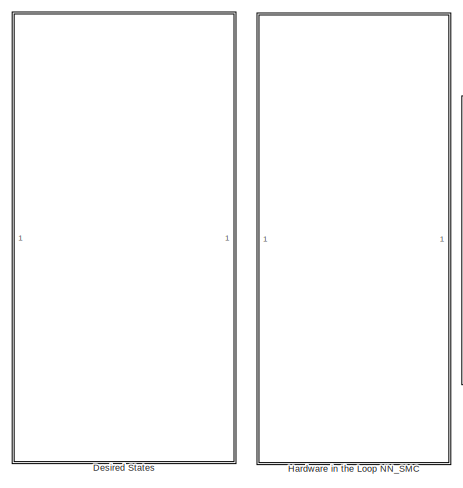
[diagram: root canvas - part 1/2, left side, full height]
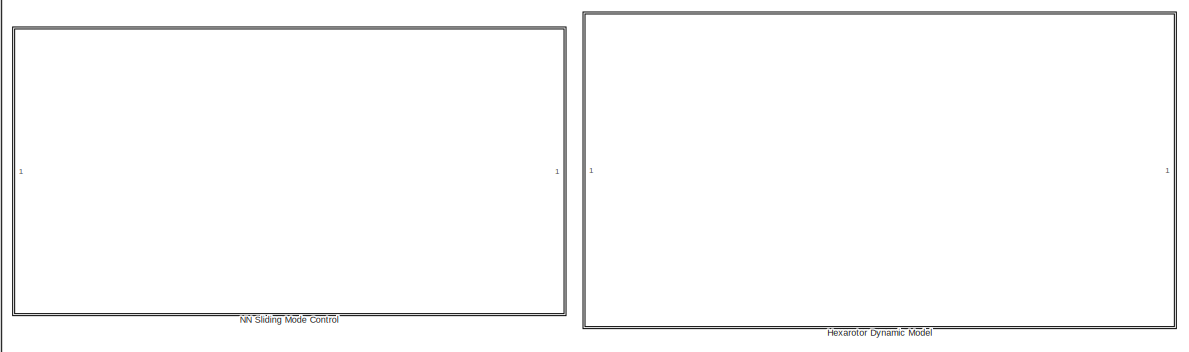
[diagram: root canvas - part 2/2, central region]
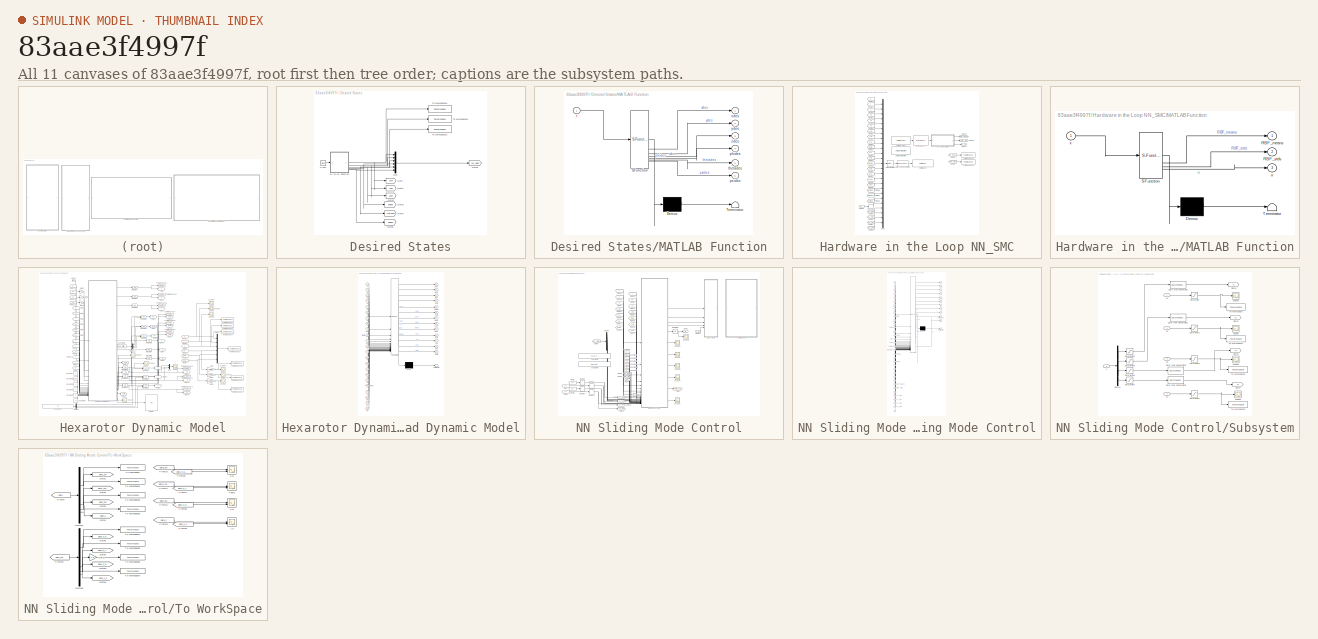
[diagram: thumbnail index - all 11 canvases of the model, root first then tree order]
MODEL slx_83aae3f4997f
KIND model
CONFIG AbsTol = auto
CONFIG EnableMultiTasking = off
CONFIG FixedStep = 0.005
CONFIG InitFcn = O = [0; 0; 0];        % world origin frame\nC = [0.0; 0.0; 0.0];  % camera origin frame\n\nd_initial = C - O;            % distance between camera and world frame\nang_initial = [0.0 0.0 0.0];  % initial orientation, [pi 0 pi/2] \nang_final = [0*pi/180  0*pi/180  0*pi/180]; \ninit_pose = [C ; ang_initial'];\nd_final=[0; 0; 3];\n%dT=0.25;\ng = 9.81;\nmass = 1; L = 0.2; \nIx = 0.008; \nIy = 0.008;\nIz = 0.017;\nc...<+10ch>
CONFIG MaxStep = auto
CONFIG MinStep = auto
CONFIG RelTol = 1e-3
CONFIG SampleTimeConstraint = Unconstrained
CONFIG SolverName = ode4
CONFIG StartTime = 0.0
CONFIG StopTime = 20
WORKSPACE source: mxarray member
WORKSPACE ttyUSB0 = 1
BLOCK [SubSystem] Desired States
BLOCK [Clock] Desired States/Clock
BLOCK [Goto] Desired States/Goto
  GotoTag = xdes
  TagVisibility = global
BLOCK [Goto] Desired States/Goto1
  GotoTag = ydes
  TagVisibility = global
BLOCK [Goto] Desired States/Goto2
  GotoTag = zdes
  TagVisibility = global
BLOCK [Goto] Desired States/Goto3
  GotoTag = phides
  TagVisibility = global
BLOCK [Goto] Desired States/Goto4
  GotoTag = thetades
  TagVisibility = global
BLOCK [Goto] Desired States/Goto5
  GotoTag = psides
  TagVisibility = global
BLOCK [Goto] Desired States/Goto6
  GotoTag = des_states
  TagVisibility = global
BLOCK [SubSystem] Desired States/MATLAB Function
  ErrorFcn = Stateflow.Translate.translate
  PermitHierarchicalResolution = ExplicitOnly
  SFBlockType = MATLAB Function
  TreatAsAtomicUnit = on
BLOCK [Demux] Desired States/MATLAB Function/ Demux 
  Outputs = 1
BLOCK [S-Function] Desired States/MATLAB Function/ SFunction 
  EnableBusSupport = on
  FunctionName = sf_sfun
  PortCounts = [1 7]
  SFcnIsStateOwnerBlock = off
  SFunctionDeploymentMode = off
  Tag = Stateflow S-Function 1
BLOCK [Terminator] Desired States/MATLAB Function/ Terminator 
BLOCK [Outport] Desired States/MATLAB Function/phides
  Port = 4
BLOCK [Outport] Desired States/MATLAB Function/psides
  Port = 6
BLOCK [Inport] Desired States/MATLAB Function/t
BLOCK [Outport] Desired States/MATLAB Function/thetades
  Port = 5
BLOCK [Outport] Desired States/MATLAB Function/xdes
BLOCK [Outport] Desired States/MATLAB Function/ydes
  Port = 2
BLOCK [Outport] Desired States/MATLAB Function/zdes
  Port = 3
BLOCK [Mux] Desired States/Mux
  DisplayOption = bar
  Inputs = 6
BLOCK [ToWorkspace] Desired States/To Workspace13
  FixptAsFi = on
  MaxDataPoints = inf
  SampleTime = -1
  Save2DSignal = 2-D array (concatenate along first dimension)
  VariableName = zdes
BLOCK [ToWorkspace] Desired States/To Workspace14
  FixptAsFi = on
  MaxDataPoints = inf
  SampleTime = -1
  Save2DSignal = 2-D array (concatenate along first dimension)
  VariableName = ydes
BLOCK [ToWorkspace] Desired States/To Workspace15
  FixptAsFi = on
  MaxDataPoints = inf
  SampleTime = -1
  Save2DSignal = 2-D array (concatenate along first dimension)
  VariableName = xdes
BLOCK [SubSystem] Hardware in the Loop NN_SMC
BLOCK [Reference] Hardware in the Loop NN_SMC/Byte Unpack  REF=stmutilitieslib/Byte Unpack
  SourceBlock = stmutilitieslib/Byte Unpack
  SourceType = Byte Unpack
BLOCK [DataTypeConversion] Hardware in the Loop NN_SMC/Data Type Conversion
  OutDataTypeStr = single
  RndMeth = Floor
  SaturateOnIntegerOverflow = off
BLOCK [From] Hardware in the Loop NN_SMC/From33
  GotoTag = x
  TagVisibility = global
BLOCK [From] Hardware in the Loop NN_SMC/From34
  GotoTag = xd
  TagVisibility = global
BLOCK [From] Hardware in the Loop NN_SMC/From35
  GotoTag = yd
  TagVisibility = global
BLOCK [From] Hardware in the Loop NN_SMC/From36
  GotoTag = zd
  TagVisibility = global
BLOCK [From] Hardware in the Loop NN_SMC/From37
  GotoTag = y
  TagVisibility = global
BLOCK [From] Hardware in the Loop NN_SMC/From38
  GotoTag = z
  TagVisibility = global
BLOCK [From] Hardware in the Loop NN_SMC/From39
  GotoTag = xdd
  TagVisibility = global
BLOCK [From] Hardware in the Loop NN_SMC/From40
  GotoTag = ydd
  TagVisibility = global
BLOCK [From] Hardware in the Loop NN_SMC/From41
  GotoTag = phi
  TagVisibility = global
BLOCK [From] Hardware in the Loop NN_SMC/From42
  GotoTag = theta
  TagVisibility = global
BLOCK [From] Hardware in the Loop NN_SMC/From43
  GotoTag = psi
  TagVisibility = global
BLOCK [From] Hardware in the Loop NN_SMC/From44
  GotoTag = phid
  TagVisibility = global
BLOCK [From] Hardware in the Loop NN_SMC/From45
  GotoTag = thetad
  TagVisibility = global
BLOCK [From] Hardware in the Loop NN_SMC/From46
  GotoTag = psid
  TagVisibility = global
BLOCK [From] Hardware in the Loop NN_SMC/From47
  GotoTag = xdes
  TagVisibility = global
BLOCK [From] Hardware in the Loop NN_SMC/From48
  GotoTag = ydes
  TagVisibility = global
BLOCK [From] Hardware in the Loop NN_SMC/From49
  GotoTag = zdes
  TagVisibility = global
BLOCK [From] Hardware in the Loop NN_SMC/From50
  GotoTag = phides
  TagVisibility = global
BLOCK [From] Hardware in the Loop NN_SMC/From51
  GotoTag = thetades
  TagVisibility = global
BLOCK [From] Hardware in the Loop NN_SMC/From52
  GotoTag = psides
  TagVisibility = global
BLOCK [From] Hardware in the Loop NN_SMC/From53
  GotoTag = W
  TagVisibility = global
BLOCK [From] Hardware in the Loop NN_SMC/From55
  GotoTag = u1_prev
  TagVisibility = global
BLOCK [From] Hardware in the Loop NN_SMC/From56
  GotoTag = u2_prev
  TagVisibility = global
BLOCK [From] Hardware in the Loop NN_SMC/From57
  GotoTag = u3_prev
  TagVisibility = global
BLOCK [From] Hardware in the Loop NN_SMC/From58
  GotoTag = u4_prev
  TagVisibility = global
BLOCK [From] Hardware in the Loop NN_SMC/From6
  GotoTag = RBF_stds
  TagVisibility = global
BLOCK [From] Hardware in the Loop NN_SMC/From8
  GotoTag = RBF_means
  TagVisibility = global
BLOCK [Goto] Hardware in the Loop NN_SMC/Goto14
  GotoTag = u_hil
  TagVisibility = global
BLOCK [Goto] Hardware in the Loop NN_SMC/Goto15
  GotoTag = RBF_stds
  TagVisibility = global
BLOCK [Goto] Hardware in the Loop NN_SMC/Goto16
  GotoTag = RBF_means
  TagVisibility = global
BLOCK [SubSystem] Hardware in the Loop NN_SMC/MATLAB Function
  ErrorFcn = Stateflow.Translate.translate
  PermitHierarchicalResolution = ExplicitOnly
  SFBlockType = MATLAB Function
  TreatAsAtomicUnit = on
BLOCK [Demux] Hardware in the Loop NN_SMC/MATLAB Function/ Demux 
  Outputs = 1
BLOCK [S-Function] Hardware in the Loop NN_SMC/MATLAB Function/ SFunction 
  EnableBusSupport = on
  FunctionName = sf_sfun
  PortCounts = [1 4]
  SFcnIsStateOwnerBlock = off
  SFunctionDeploymentMode = off
  Tag = Stateflow S-Function 3
BLOCK [Terminator] Hardware in the Loop NN_SMC/MATLAB Function/ Terminator 
BLOCK [Outport] Hardware in the Loop NN_SMC/MATLAB Function/RBF_means
BLOCK [Outport] Hardware in the Loop NN_SMC/MATLAB Function/RBF_stds
  Port = 2
BLOCK [Outport] Hardware in the Loop NN_SMC/MATLAB Function/u
  Port = 3
BLOCK [Inport] Hardware in the Loop NN_SMC/MATLAB Function/x
BLOCK [Mux] Hardware in the Loop NN_SMC/Mux1
  DisplayOption = bar
  Inputs = 25
BLOCK [RateTransition] Hardware in the Loop NN_SMC/Rate Transition
  OutPortSampleTime = 0.005
BLOCK [Reshape] Hardware in the Loop NN_SMC/Reshape
  OutputDimensionality = Customize
  OutputDimensions = [40,1]
BLOCK [Reference] Hardware in the Loop NN_SMC/Serial Configuration  REF=instrumentseriallib/Serial Configuration
  Priority = -200000
  SourceBlock = instrumentseriallib/Serial Configuration
  SourceType = system.SerialConfiguration
BLOCK [Reference] Hardware in the Loop NN_SMC/Serial Receive1  REF=instrumentseriallib/Serial Receive
  Priority = 1
  SourceBlock = instrumentseriallib/Serial Receive
  SourceType = system.SerialReceive
BLOCK [Reference] Hardware in the Loop NN_SMC/Serial Send  REF=instrumentseriallib/Serial Send
  Priority = 1
  SourceBlock = instrumentseriallib/Serial Send
  SourceType = system.SerialSend
BLOCK [ToWorkspace] Hardware in the Loop NN_SMC/To Workspace8
  FixptAsFi = on
  MaxDataPoints = inf
  SampleTime = -1
  Save2DSignal = 2-D array (concatenate along first dimension)
  VariableName = RBF_stds_ESP
BLOCK [ToWorkspace] Hardware in the Loop NN_SMC/To Workspace9
  FixptAsFi = on
  MaxDataPoints = inf
  SampleTime = -1
  Save2DSignal = 2-D array (concatenate along first dimension)
  VariableName = RBF_means_ESP
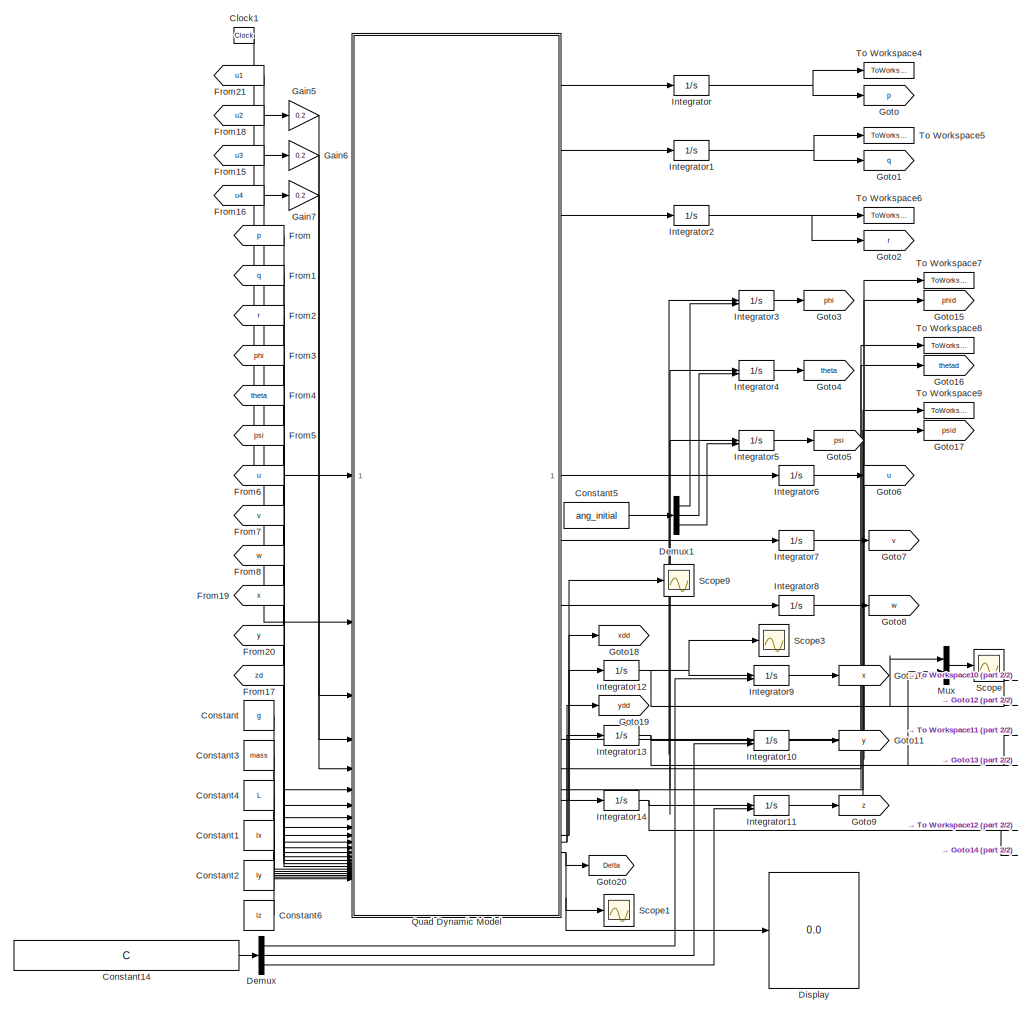
[diagram: Hexarotor Dynamic Model - part 1/2, center side, full height]
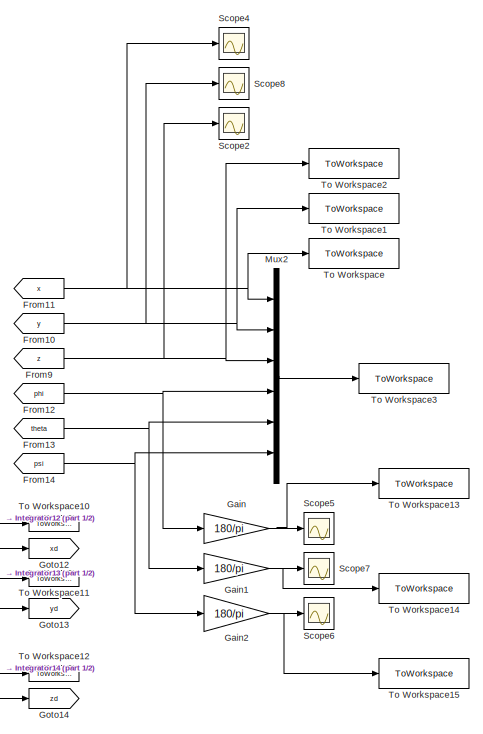
[diagram: Hexarotor Dynamic Model - part 2/2, middle right region]
BLOCK [SubSystem] Hexarotor Dynamic Model
BLOCK [Clock] Hexarotor Dynamic Model/Clock1
BLOCK [Constant] Hexarotor Dynamic Model/Constant
  Value = g
BLOCK [Constant] Hexarotor Dynamic Model/Constant1
  Value = Ix
BLOCK [Constant] Hexarotor Dynamic Model/Constant14
  Value = C
BLOCK [Constant] Hexarotor Dynamic Model/Constant2
  Value = Iy
BLOCK [Constant] Hexarotor Dynamic Model/Constant3
  Value = mass
BLOCK [Constant] Hexarotor Dynamic Model/Constant4
  Value = L
BLOCK [Constant] Hexarotor Dynamic Model/Constant5
  Value = ang_initial
BLOCK [Constant] Hexarotor Dynamic Model/Constant6
  Value = Iz
BLOCK [Demux] Hexarotor Dynamic Model/Demux
  Outputs = 3
BLOCK [Demux] Hexarotor Dynamic Model/Demux1
  Outputs = 3
BLOCK [Display] Hexarotor Dynamic Model/Display
  Decimation = 1
BLOCK [From] Hexarotor Dynamic Model/From
  GotoTag = p
  TagVisibility = global
BLOCK [From] Hexarotor Dynamic Model/From1
  GotoTag = q
  TagVisibility = global
BLOCK [From] Hexarotor Dynamic Model/From10
  GotoTag = y
  TagVisibility = global
BLOCK [From] Hexarotor Dynamic Model/From11
  GotoTag = x
  TagVisibility = global
BLOCK [From] Hexarotor Dynamic Model/From12
  GotoTag = phi
  TagVisibility = global
BLOCK [From] Hexarotor Dynamic Model/From13
  GotoTag = theta
  TagVisibility = global
BLOCK [From] Hexarotor Dynamic Model/From14
  GotoTag = psi
  TagVisibility = global
BLOCK [From] Hexarotor Dynamic Model/From15
  GotoTag = u3
  TagVisibility = global
BLOCK [From] Hexarotor Dynamic Model/From16
  GotoTag = u4
  TagVisibility = global
BLOCK [From] Hexarotor Dynamic Model/From17
  GotoTag = zd
  TagVisibility = global
BLOCK [From] Hexarotor Dynamic Model/From18
  GotoTag = u2
  TagVisibility = global
BLOCK [From] Hexarotor Dynamic Model/From19
  GotoTag = x
  TagVisibility = global
BLOCK [From] Hexarotor Dynamic Model/From2
  GotoTag = r
  TagVisibility = global
BLOCK [From] Hexarotor Dynamic Model/From20
  GotoTag = y
  TagVisibility = global
BLOCK [From] Hexarotor Dynamic Model/From21
  GotoTag = u1
  TagVisibility = global
BLOCK [From] Hexarotor Dynamic Model/From3
  GotoTag = phi
  TagVisibility = global
BLOCK [From] Hexarotor Dynamic Model/From4
  GotoTag = theta
  TagVisibility = global
BLOCK [From] Hexarotor Dynamic Model/From5
  GotoTag = psi
  TagVisibility = global
BLOCK [From] Hexarotor Dynamic Model/From6
  GotoTag = u
  TagVisibility = global
BLOCK [From] Hexarotor Dynamic Model/From7
  GotoTag = v
  TagVisibility = global
BLOCK [From] Hexarotor Dynamic Model/From8
  GotoTag = w
  TagVisibility = global
BLOCK [From] Hexarotor Dynamic Model/From9
  GotoTag = z
  TagVisibility = global
BLOCK [Gain] Hexarotor Dynamic Model/Gain
  Gain = 180/pi
BLOCK [Gain] Hexarotor Dynamic Model/Gain1
  Gain = 180/pi
BLOCK [Gain] Hexarotor Dynamic Model/Gain2
  Gain = 180/pi
BLOCK [Gain] Hexarotor Dynamic Model/Gain5
  Gain = 0.2
BLOCK [Gain] Hexarotor Dynamic Model/Gain6
  Gain = 0.2
BLOCK [Gain] Hexarotor Dynamic Model/Gain7
  Gain = 0.2
BLOCK [Goto] Hexarotor Dynamic Model/Goto
  GotoTag = p
  TagVisibility = global
BLOCK [Goto] Hexarotor Dynamic Model/Goto1
  GotoTag = q
  TagVisibility = global
BLOCK [Goto] Hexarotor Dynamic Model/Goto10
  GotoTag = x
  TagVisibility = global
BLOCK [Goto] Hexarotor Dynamic Model/Goto11
  GotoTag = y
  TagVisibility = global
BLOCK [Goto] Hexarotor Dynamic Model/Goto12
  GotoTag = xd
  TagVisibility = global
BLOCK [Goto] Hexarotor Dynamic Model/Goto13
  GotoTag = yd
  TagVisibility = global
BLOCK [Goto] Hexarotor Dynamic Model/Goto14
  GotoTag = zd
  TagVisibility = global
BLOCK [Goto] Hexarotor Dynamic Model/Goto15
  GotoTag = phid
  TagVisibility = global
BLOCK [Goto] Hexarotor Dynamic Model/Goto16
  GotoTag = thetad
  TagVisibility = global
BLOCK [Goto] Hexarotor Dynamic Model/Goto17
  GotoTag = psid
  TagVisibility = global
BLOCK [Goto] Hexarotor Dynamic Model/Goto18
  GotoTag = xdd
  TagVisibility = global
BLOCK [Goto] Hexarotor Dynamic Model/Goto19
  GotoTag = ydd
  TagVisibility = global
BLOCK [Goto] Hexarotor Dynamic Model/Goto2
  GotoTag = r
  TagVisibility = global
BLOCK [Goto] Hexarotor Dynamic Model/Goto20
  GotoTag = Delta
  TagVisibility = global
BLOCK [Goto] Hexarotor Dynamic Model/Goto3
  GotoTag = phi
  TagVisibility = global
BLOCK [Goto] Hexarotor Dynamic Model/Goto4
  GotoTag = theta
  TagVisibility = global
BLOCK [Goto] Hexarotor Dynamic Model/Goto5
  GotoTag = psi
  TagVisibility = global
BLOCK [Goto] Hexarotor Dynamic Model/Goto6
  GotoTag = u
  TagVisibility = global
BLOCK [Goto] Hexarotor Dynamic Model/Goto7
  GotoTag = v
  TagVisibility = global
BLOCK [Goto] Hexarotor Dynamic Model/Goto8
  GotoTag = w
  TagVisibility = global
BLOCK [Goto] Hexarotor Dynamic Model/Goto9
  GotoTag = z
  TagVisibility = global
BLOCK [Integrator] Hexarotor Dynamic Model/Integrator
  InitialCondition = -0.003775510005653
BLOCK [Integrator] Hexarotor Dynamic Model/Integrator1
  InitialCondition = 0.003931066952646
BLOCK [Integrator] Hexarotor Dynamic Model/Integrator10
  InitialConditionSource = external
BLOCK [Integrator] Hexarotor Dynamic Model/Integrator11
  InitialConditionSource = external
BLOCK [Integrator] Hexarotor Dynamic Model/Integrator12
BLOCK [Integrator] Hexarotor Dynamic Model/Integrator13
BLOCK [Integrator] Hexarotor Dynamic Model/Integrator14
BLOCK [Integrator] Hexarotor Dynamic Model/Integrator2
  InitialCondition = 0.005723309703171
BLOCK [Integrator] Hexarotor Dynamic Model/Integrator3
  InitialConditionSource = external
BLOCK [Integrator] Hexarotor Dynamic Model/Integrator4
  InitialConditionSource = external
BLOCK [Integrator] Hexarotor Dynamic Model/Integrator5
  InitialConditionSource = external
BLOCK [Integrator] Hexarotor Dynamic Model/Integrator6
BLOCK [Integrator] Hexarotor Dynamic Model/Integrator7
BLOCK [Integrator] Hexarotor Dynamic Model/Integrator8
BLOCK [Integrator] Hexarotor Dynamic Model/Integrator9
  InitialConditionSource = external
BLOCK [Mux] Hexarotor Dynamic Model/Mux
  DisplayOption = bar
  Inputs = 2
BLOCK [Mux] Hexarotor Dynamic Model/Mux2
  DisplayOption = bar
  Inputs = 6
BLOCK [SubSystem] Hexarotor Dynamic Model/Quad Dynamic Model
  ErrorFcn = Stateflow.Translate.translate
  PermitHierarchicalResolution = ExplicitOnly
  SFBlockType = MATLAB Function
  TreatAsAtomicUnit = on
BLOCK [Demux] Hexarotor Dynamic Model/Quad Dynamic Model/ Demux 
  Outputs = 1
BLOCK [S-Function] Hexarotor Dynamic Model/Quad Dynamic Model/ SFunction 
  EnableBusSupport = on
  FunctionName = sf_sfun
  PortCounts = [23 14]
  SFcnIsStateOwnerBlock = off
  SFunctionDeploymentMode = off
  Tag = Stateflow S-Function 2
BLOCK [Terminator] Hexarotor Dynamic Model/Quad Dynamic Model/ Terminator 
BLOCK [Outport] Hexarotor Dynamic Model/Quad Dynamic Model/Delta
  Port = 13
BLOCK [Inport] Hexarotor Dynamic Model/Quad Dynamic Model/Ixx
  Port = 21
BLOCK [Inport] Hexarotor Dynamic Model/Quad Dynamic Model/Iyy
  Port = 22
BLOCK [Inport] Hexarotor Dynamic Model/Quad Dynamic Model/Izz
  Port = 23
BLOCK [Inport] Hexarotor Dynamic Model/Quad Dynamic Model/L
  Port = 20
BLOCK [Inport] Hexarotor Dynamic Model/Quad Dynamic Model/g
  Port = 18
BLOCK [Inport] Hexarotor Dynamic Model/Quad Dynamic Model/mass
  Port = 19
BLOCK [Inport] Hexarotor Dynamic Model/Quad Dynamic Model/p
  Port = 6
BLOCK [Outport] Hexarotor Dynamic Model/Quad Dynamic Model/pdot
BLOCK [Inport] Hexarotor Dynamic Model/Quad Dynamic Model/phi
  Port = 9
BLOCK [Outport] Hexarotor Dynamic Model/Quad Dynamic Model/phid
  Port = 4
BLOCK [Inport] Hexarotor Dynamic Model/Quad Dynamic Model/psi
  Port = 11
BLOCK [Outport] Hexarotor Dynamic Model/Quad Dynamic Model/psid
  Port = 6
BLOCK [Inport] Hexarotor Dynamic Model/Quad Dynamic Model/q
  Port = 7
BLOCK [Outport] Hexarotor Dynamic Model/Quad Dynamic Model/qdot
  Port = 2
BLOCK [Inport] Hexarotor Dynamic Model/Quad Dynamic Model/r
  Port = 8
BLOCK [Outport] Hexarotor Dynamic Model/Quad Dynamic Model/rdot
  Port = 3
BLOCK [Inport] Hexarotor Dynamic Model/Quad Dynamic Model/t
BLOCK [Inport] Hexarotor Dynamic Model/Quad Dynamic Model/theta
  Port = 10
BLOCK [Outport] Hexarotor Dynamic Model/Quad Dynamic Model/thetad
  Port = 5
BLOCK [Inport] Hexarotor Dynamic Model/Quad Dynamic Model/u
  Port = 12
BLOCK [Inport] Hexarotor Dynamic Model/Quad Dynamic Model/u1
  Port = 2
BLOCK [Inport] Hexarotor Dynamic Model/Quad Dynamic Model/u2
  Port = 3
BLOCK [Inport] Hexarotor Dynamic Model/Quad Dynamic Model/u3
  Port = 4
BLOCK [Inport] Hexarotor Dynamic Model/Quad Dynamic Model/u4
  Port = 5
BLOCK [Outport] Hexarotor Dynamic Model/Quad Dynamic Model/udot
  Port = 7
BLOCK [Inport] Hexarotor Dynamic Model/Quad Dynamic Model/v
  Port = 13
BLOCK [Outport] Hexarotor Dynamic Model/Quad Dynamic Model/vdot
  Port = 8
BLOCK [Inport] Hexarotor Dynamic Model/Quad Dynamic Model/w
  Port = 14
BLOCK [Outport] Hexarotor Dynamic Model/Quad Dynamic Model/wdot
  Port = 9
BLOCK [Inport] Hexarotor Dynamic Model/Quad Dynamic Model/x
  Port = 15
BLOCK [Outport] Hexarotor Dynamic Model/Quad Dynamic Model/xdd
  Port = 10
BLOCK [Inport] Hexarotor Dynamic Model/Quad Dynamic Model/y
  Port = 16
BLOCK [Outport] Hexarotor Dynamic Model/Quad Dynamic Model/ydd
  Port = 11
BLOCK [Inport] Hexarotor Dynamic Model/Quad Dynamic Model/zd
  Port = 17
BLOCK [Outport] Hexarotor Dynamic Model/Quad Dynamic Model/zdd
  Port = 12
BLOCK [Scope] Hexarotor Dynamic Model/Scope
  Floating = off
  NumInputPorts = 1
  ScopeSpecificationString = Simulink.scopes.TimeScopeBlockCfg('CurrentConfiguration', extmgr.ConfigurationSet(extmgr.Configuration('Core','General UI',true),extmgr.Configuration('Core','Source UI',true),extmgr.Configuration('Sources','WiredSimulink',true,'DataLoggingVariableName','ScopeData2'),extmgr.Configuration('Visuals','Time Domain',true,'SerializedDisplays',{struct('MinYLimReal','-0.08367','MaxYLimReal','0.08367','YLab...<+1554ch>
BLOCK [Scope] Hexarotor Dynamic Model/Scope1
  Floating = off
  NumInputPorts = 1
  ScopeSpecificationString = Simulink.scopes.TimeScopeBlockCfg('CurrentConfiguration', extmgr.ConfigurationSet(extmgr.Configuration('Core','General UI',true),extmgr.Configuration('Core','Source UI',true),extmgr.Configuration('Sources','WiredSimulink',true,'DataLoggingVariableName','ScopeData1'),extmgr.Configuration('Visuals','Time Domain',true,'SerializedDisplays',{struct('MinYLimReal','-0.625','MaxYLimReal','0.625','YLabelRe...<+1617ch>
BLOCK [Scope] Hexarotor Dynamic Model/Scope2
  Floating = off
  NumInputPorts = 1
  ScopeSpecificationString = Simulink.scopes.TimeScopeBlockCfg('CurrentConfiguration', extmgr.ConfigurationSet(extmgr.Configuration('Core','General UI',true),extmgr.Configuration('Core','Source UI',true),extmgr.Configuration('Sources','WiredSimulink',true,'DataLoggingVariableName','ScopeData2'),extmgr.Configuration('Visuals','Time Domain',true,'SerializedDisplays',{struct('MinYLimReal','-0.25007','MaxYLimReal','2.2506','YLabe...<+1528ch>
BLOCK [Scope] Hexarotor Dynamic Model/Scope3
  Floating = off
  NumInputPorts = 1
  ScopeSpecificationString = Simulink.scopes.TimeScopeBlockCfg('CurrentConfiguration', extmgr.ConfigurationSet(extmgr.Configuration('Core','General UI',true),extmgr.Configuration('Core','Source UI',true),extmgr.Configuration('Sources','WiredSimulink',true,'DataLoggingVariableName','ScopeData4'),extmgr.Configuration('Visuals','Time Domain',true,'SerializedDisplays',{struct('MinYLimReal','-0.10666','MaxYLimReal','0.11061','YLab...<+1566ch>
BLOCK [Scope] Hexarotor Dynamic Model/Scope4
  Floating = off
  NumInputPorts = 1
  ScopeSpecificationString = Simulink.scopes.TimeScopeBlockCfg('CurrentConfiguration', extmgr.ConfigurationSet(extmgr.Configuration('Core','General UI',true),extmgr.Configuration('Core','Source UI',true),extmgr.Configuration('Sources','WiredSimulink',true,'DataLoggingVariableName','ScopeData3'),extmgr.Configuration('Visuals','Time Domain',true,'SerializedDisplays',{struct('MinYLimReal','-0.1266','MaxYLimReal','1.12594','YLabe...<+1529ch>
BLOCK [Scope] Hexarotor Dynamic Model/Scope5
  Floating = off
  NumInputPorts = 1
  ScopeSpecificationString = Simulink.scopes.TimeScopeBlockCfg('CurrentConfiguration', extmgr.ConfigurationSet(extmgr.Configuration('Core','General UI',true),extmgr.Configuration('Core','Source UI',true),extmgr.Configuration('Sources','WiredSimulink',true,'DataLoggingVariableName','ScopeData4'),extmgr.Configuration('Visuals','Time Domain',true,'SerializedDisplays',{struct('MinYLimReal','-0.4927','MaxYLimReal','0.5089','YLabel...<+1500ch>
BLOCK [Scope] Hexarotor Dynamic Model/Scope6
  Floating = off
  NumInputPorts = 1
  ScopeSpecificationString = Simulink.scopes.TimeScopeBlockCfg('CurrentConfiguration', extmgr.ConfigurationSet(extmgr.Configuration('Core','General UI',true),extmgr.Configuration('Core','Source UI',true),extmgr.Configuration('Sources','WiredSimulink',true,'DataLoggingVariableName','ScopeData5'),extmgr.Configuration('Visuals','Time Domain',true,'SerializedDisplays',{struct('MinYLimReal','-0.13743','MaxYLimReal','0.0868','YLabe...<+1504ch>
BLOCK [Scope] Hexarotor Dynamic Model/Scope7
  Floating = off
  NumInputPorts = 1
  ScopeSpecificationString = Simulink.scopes.TimeScopeBlockCfg('CurrentConfiguration', extmgr.ConfigurationSet(extmgr.Configuration('Core','General UI',true),extmgr.Configuration('Core','Source UI',true),extmgr.Configuration('Sources','WiredSimulink',true,'DataLoggingVariableName','ScopeData6'),extmgr.Configuration('Visuals','Time Domain',true,'SerializedDisplays',{struct('MinYLimReal','-0.5071','MaxYLimReal','0.47436','YLabe...<+1502ch>
BLOCK [Scope] Hexarotor Dynamic Model/Scope8
  Floating = off
  NumInputPorts = 1
  ScopeSpecificationString = Simulink.scopes.TimeScopeBlockCfg('CurrentConfiguration', extmgr.ConfigurationSet(extmgr.Configuration('Core','General UI',true),extmgr.Configuration('Core','Source UI',true),extmgr.Configuration('Sources','WiredSimulink',true,'DataLoggingVariableName','ScopeData1'),extmgr.Configuration('Visuals','Time Domain',true,'SerializedDisplays',{struct('MinYLimReal','-0.12514','MaxYLimReal','1.12624','YLab...<+1513ch>
BLOCK [Scope] Hexarotor Dynamic Model/Scope9
  Floating = off
  NumInputPorts = 1
  ScopeSpecificationString = Simulink.scopes.TimeScopeBlockCfg('CurrentConfiguration', extmgr.ConfigurationSet(extmgr.Configuration('Core','General UI',true),extmgr.Configuration('Core','Source UI',true),extmgr.Configuration('Sources','WiredSimulink',true,'DataLoggingVariableName','ScopeData5'),extmgr.Configuration('Visuals','Time Domain',true,'SerializedDisplays',{struct('MinYLimReal','-0.0733','MaxYLimReal','0.08311','YLabe...<+1545ch>
BLOCK [ToWorkspace] Hexarotor Dynamic Model/To Workspace
  FixptAsFi = on
  MaxDataPoints = inf
  SampleTime = -1
  Save2DSignal = 2-D array (concatenate along first dimension)
  VariableName = x
BLOCK [ToWorkspace] Hexarotor Dynamic Model/To Workspace1
  FixptAsFi = on
  MaxDataPoints = inf
  SampleTime = -1
  Save2DSignal = 2-D array (concatenate along first dimension)
  VariableName = y
BLOCK [ToWorkspace] Hexarotor Dynamic Model/To Workspace10
  FixptAsFi = on
  MaxDataPoints = inf
  SampleTime = -1
  VariableName = xd
BLOCK [ToWorkspace] Hexarotor Dynamic Model/To Workspace11
  FixptAsFi = on
  MaxDataPoints = inf
  SampleTime = -1
  VariableName = yd
BLOCK [ToWorkspace] Hexarotor Dynamic Model/To Workspace12
  FixptAsFi = on
  MaxDataPoints = inf
  SampleTime = -1
  VariableName = zd
BLOCK [ToWorkspace] Hexarotor Dynamic Model/To Workspace13
  FixptAsFi = on
  MaxDataPoints = inf
  SampleTime = -1
  Save2DSignal = 2-D array (concatenate along first dimension)
  VariableName = phi
BLOCK [ToWorkspace] Hexarotor Dynamic Model/To Workspace14
  FixptAsFi = on
  MaxDataPoints = inf
  SampleTime = -1
  Save2DSignal = 2-D array (concatenate along first dimension)
  VariableName = theta
BLOCK [ToWorkspace] Hexarotor Dynamic Model/To Workspace15
  FixptAsFi = on
  MaxDataPoints = inf
  SampleTime = -1
  Save2DSignal = 2-D array (concatenate along first dimension)
  VariableName = psi
BLOCK [ToWorkspace] Hexarotor Dynamic Model/To Workspace2
  FixptAsFi = on
  MaxDataPoints = inf
  SampleTime = -1
  Save2DSignal = 2-D array (concatenate along first dimension)
  VariableName = z
BLOCK [ToWorkspace] Hexarotor Dynamic Model/To Workspace3
  FixptAsFi = on
  MaxDataPoints = inf
  SampleTime = -1
  Save2DSignal = 2-D array (concatenate along first dimension)
  VariableName = pose
BLOCK [ToWorkspace] Hexarotor Dynamic Model/To Workspace4
  FixptAsFi = on
  MaxDataPoints = inf
  SampleTime = -1
  VariableName = p
BLOCK [ToWorkspace] Hexarotor Dynamic Model/To Workspace5
  FixptAsFi = on
  MaxDataPoints = inf
  SampleTime = -1
  VariableName = q
BLOCK [ToWorkspace] Hexarotor Dynamic Model/To Workspace6
  FixptAsFi = on
  MaxDataPoints = inf
  SampleTime = -1
  VariableName = r
BLOCK [ToWorkspace] Hexarotor Dynamic Model/To Workspace7
  FixptAsFi = on
  MaxDataPoints = inf
  SampleTime = -1
  VariableName = phid
BLOCK [ToWorkspace] Hexarotor Dynamic Model/To Workspace8
  FixptAsFi = on
  MaxDataPoints = inf
  SampleTime = -1
  VariableName = thetad
BLOCK [ToWorkspace] Hexarotor Dynamic Model/To Workspace9
  FixptAsFi = on
  MaxDataPoints = inf
  SampleTime = -1
  VariableName = psid
BLOCK [SubSystem] NN Sliding Mode Control
BLOCK [Clock] NN Sliding Mode Control/Clock
BLOCK [Constant] NN Sliding Mode Control/Constant
  Value = g
BLOCK [Constant] NN Sliding Mode Control/Constant1
  Value = mass
BLOCK [Constant] NN Sliding Mode Control/Constant10
  Value = Iz
BLOCK [Constant] NN Sliding Mode Control/Constant2
  Value = L
BLOCK [Constant] NN Sliding Mode Control/Constant3
  Value = Ix
BLOCK [Constant] NN Sliding Mode Control/Constant4
  Value = Iy
BLOCK [Constant] NN Sliding Mode Control/Constant5
  Value = c
BLOCK [Constant] NN Sliding Mode Control/Constant8
  Value = -1 + (1 - (-1)) .* rand(14, 10)
BLOCK [Constant] NN Sliding Mode Control/Constant9
  Value = 1.2 + (4.2 - 1.2) * rand(10, 1)
BLOCK [Demux] NN Sliding Mode Control/Demux
  Outputs = 6
BLOCK [From] NN Sliding Mode Control/From
  GotoTag = u2
  TagVisibility = global
BLOCK [From] NN Sliding Mode Control/From1
  GotoTag = xd
  TagVisibility = global
BLOCK [From] NN Sliding Mode Control/From14
  GotoTag = zd
  TagVisibility = global
BLOCK [From] NN Sliding Mode Control/From15
  GotoTag = phi
  TagVisibility = global
BLOCK [From] NN Sliding Mode Control/From16
  GotoTag = theta
  TagVisibility = global
BLOCK [From] NN Sliding Mode Control/From17
  GotoTag = psi
  TagVisibility = global
BLOCK [From] NN Sliding Mode Control/From18
  GotoTag = phid
  TagVisibility = global
BLOCK [From] NN Sliding Mode Control/From19
  GotoTag = thetad
  TagVisibility = global
BLOCK [From] NN Sliding Mode Control/From2
  GotoTag = yd
  TagVisibility = global
BLOCK [From] NN Sliding Mode Control/From20
  GotoTag = psid
  TagVisibility = global
BLOCK [From] NN Sliding Mode Control/From21
  GotoTag = y
  TagVisibility = global
BLOCK [From] NN Sliding Mode Control/From22
  GotoTag = x
  TagVisibility = global
BLOCK [From] NN Sliding Mode Control/From23
  GotoTag = z
  TagVisibility = global
BLOCK [From] NN Sliding Mode Control/From24
  GotoTag = xdd
  TagVisibility = global
BLOCK [From] NN Sliding Mode Control/From25
  GotoTag = ydd
  TagVisibility = global
BLOCK [From] NN Sliding Mode Control/From3
  GotoTag = u3
  TagVisibility = global
BLOCK [From] NN Sliding Mode Control/From31
  GotoTag = RBF_means
  TagVisibility = global
BLOCK [From] NN Sliding Mode Control/From32
  GotoTag = RBF_stds
  TagVisibility = global
BLOCK [From] NN Sliding Mode Control/From4
  GotoTag = u4
  TagVisibility = global
BLOCK [From] NN Sliding Mode Control/From5
  GotoTag = u1
  TagVisibility = global
BLOCK [From] NN Sliding Mode Control/From54
  GotoTag = u_hil
  TagVisibility = global
BLOCK [From] NN Sliding Mode Control/From6
  GotoTag = des_states
  TagVisibility = global
BLOCK [From] NN Sliding Mode Control/From7
  GotoTag = W
  TagVisibility = global
BLOCK [Goto] NN Sliding Mode Control/Goto
  GotoTag = Delta_hat
  TagVisibility = global
BLOCK [Goto] NN Sliding Mode Control/Goto12
  GotoTag = u3_prev
  TagVisibility = global
BLOCK [Goto] NN Sliding Mode Control/Goto13
  GotoTag = u4_prev
  TagVisibility = global
BLOCK [Goto] NN Sliding Mode Control/Goto5
  GotoTag = u1_prev
  TagVisibility = global
BLOCK [Goto] NN Sliding Mode Control/Goto6
  GotoTag = W
  TagVisibility = global
BLOCK [Goto] NN Sliding Mode Control/Goto7
  GotoTag = u2_prev
  TagVisibility = global
BLOCK [Integrator] NN Sliding Mode Control/Integrator8
  InitialCondition = zeros(10, 4)
BLOCK [Memory] NN Sliding Mode Control/Memory
BLOCK [Memory] NN Sliding Mode Control/Memory1
BLOCK [Memory] NN Sliding Mode Control/Memory2
BLOCK [Memory] NN Sliding Mode Control/Memory3
BLOCK [Scope] NN Sliding Mode Control/Scope1
  Floating = off
  NumInputPorts = 1
  ScopeSpecificationString = Simulink.scopes.TimeScopeBlockCfg('CurrentConfiguration', extmgr.ConfigurationSet(extmgr.Configuration('Core','General UI',true),extmgr.Configuration('Core','Source UI',true),extmgr.Configuration('Sources','WiredSimulink',true,'DataLoggingVariableName','ScopeData1'),extmgr.Configuration('Visuals','Time Domain',true,'SerializedDisplays',{struct('MinYLimReal','-0.02097','MaxYLimReal','0.0307','YLabe...<+1566ch>
BLOCK [Scope] NN Sliding Mode Control/Scope4
  Floating = off
  NumInputPorts = 1
  ScopeSpecificationString = Simulink.scopes.TimeScopeBlockCfg('CurrentConfiguration', extmgr.ConfigurationSet(extmgr.Configuration('Core','General UI',true),extmgr.Configuration('Core','Source UI',true),extmgr.Configuration('Sources','WiredSimulink',true,'DataLoggingVariableName','ScopeData1'),extmgr.Configuration('Visuals','Time Domain',true,'SerializedDisplays',{struct('MinYLimReal','-2.26944','MaxYLimReal','0.42492','YLab...<+1570ch>
BLOCK [Scope] NN Sliding Mode Control/Scope5
  Floating = off
  NumInputPorts = 1
  ScopeSpecificationString = Simulink.scopes.TimeScopeBlockCfg('CurrentConfiguration', extmgr.ConfigurationSet(extmgr.Configuration('Core','General UI',true),extmgr.Configuration('Core','Source UI',true),extmgr.Configuration('Sources','WiredSimulink',true,'DataLoggingVariableName','ScopeData2'),extmgr.Configuration('Visuals','Time Domain',true,'SerializedDisplays',{struct('MinYLimReal','-0.02097','MaxYLimReal','0.0307','YLabe...<+1566ch>
BLOCK [Scope] NN Sliding Mode Control/Scope6
  Floating = off
  NumInputPorts = 1
  ScopeSpecificationString = Simulink.scopes.TimeScopeBlockCfg('CurrentConfiguration', extmgr.ConfigurationSet(extmgr.Configuration('Core','General UI',true),extmgr.Configuration('Core','Source UI',true),extmgr.Configuration('Sources','WiredSimulink',true,'DataLoggingVariableName','ScopeData3'),extmgr.Configuration('Visuals','Time Domain',true,'SerializedDisplays',{struct('MinYLimReal','-0.01385','MaxYLimReal','0.0228','YLabe...<+1553ch>
BLOCK [Scope] NN Sliding Mode Control/Scope7
  Floating = off
  NumInputPorts = 1
  ScopeSpecificationString = Simulink.scopes.TimeScopeBlockCfg('CurrentConfiguration', extmgr.ConfigurationSet(extmgr.Configuration('Core','General UI',true),extmgr.Configuration('Core','Source UI',true),extmgr.Configuration('Sources','WiredSimulink',true,'DataLoggingVariableName','ScopeData4'),extmgr.Configuration('Visuals','Time Domain',true,'SerializedDisplays',{struct('MinYLimReal','-0.00718','MaxYLimReal','0.00741','YLab...<+1557ch>
BLOCK [Scope] NN Sliding Mode Control/Scope8
  Floating = off
  NumInputPorts = 1
  ScopeSpecificationString = Simulink.scopes.TimeScopeBlockCfg('CurrentConfiguration', extmgr.ConfigurationSet(extmgr.Configuration('Core','General UI',true),extmgr.Configuration('Core','Source UI',true),extmgr.Configuration('Sources','WiredSimulink',true,'DataLoggingVariableName','ScopeData1'),extmgr.Configuration('Visuals','Time Domain',true,'SerializedDisplays',{struct('MinYLimReal','-3.70205','MaxYLimReal','2.97036','YLab...<+2210ch>
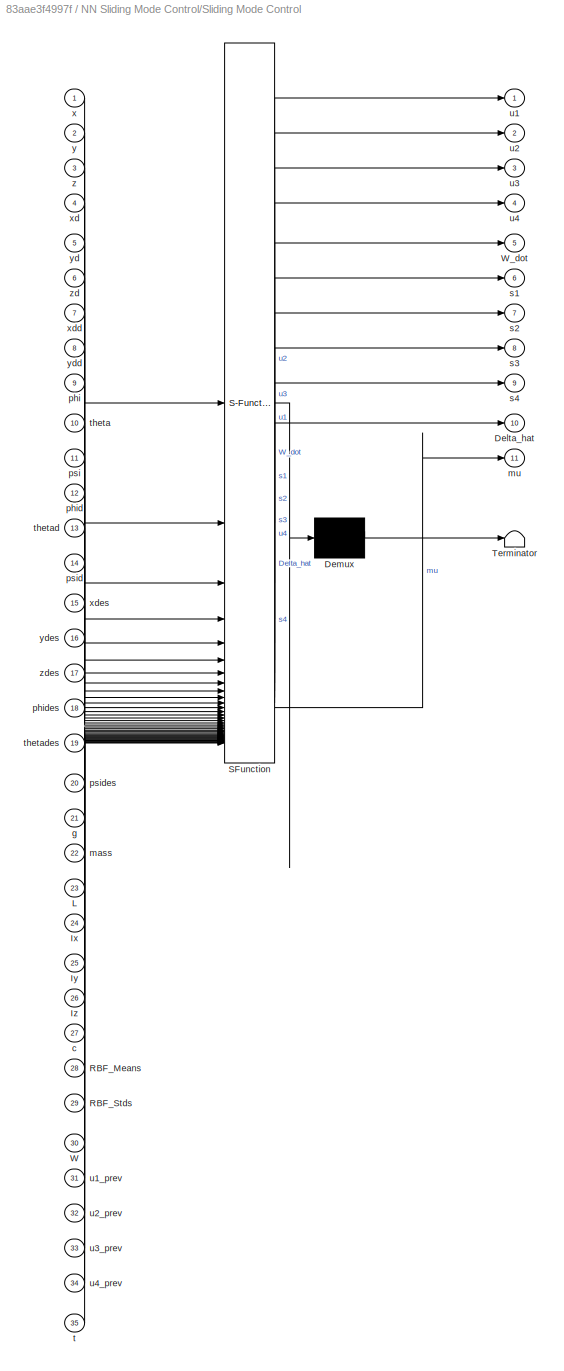
BLOCK [SubSystem] NN Sliding Mode Control/Sliding Mode Control
  ErrorFcn = Stateflow.Translate.translate
  PermitHierarchicalResolution = ExplicitOnly
  SFBlockType = MATLAB Function
  TreatAsAtomicUnit = on
BLOCK [Demux] NN Sliding Mode Control/Sliding Mode Control/ Demux 
  Outputs = 1
BLOCK [S-Function] NN Sliding Mode Control/Sliding Mode Control/ SFunction 
  EnableBusSupport = on
  FunctionName = sf_sfun
  PortCounts = [35 12]
  SFcnIsStateOwnerBlock = off
  SFunctionDeploymentMode = off
  Tag = Stateflow S-Function 7
BLOCK [Terminator] NN Sliding Mode Control/Sliding Mode Control/ Terminator 
BLOCK [Outport] NN Sliding Mode Control/Sliding Mode Control/Delta_hat
  Port = 10
BLOCK [Inport] NN Sliding Mode Control/Sliding Mode Control/Ix
  Port = 24
BLOCK [Inport] NN Sliding Mode Control/Sliding Mode Control/Iy
  Port = 25
BLOCK [Inport] NN Sliding Mode Control/Sliding Mode Control/Iz
  Port = 26
BLOCK [Inport] NN Sliding Mode Control/Sliding Mode Control/L
  Port = 23
BLOCK [Inport] NN Sliding Mode Control/Sliding Mode Control/RBF_Means
  Port = 28
BLOCK [Inport] NN Sliding Mode Control/Sliding Mode Control/RBF_Stds
  Port = 29
BLOCK [Inport] NN Sliding Mode Control/Sliding Mode Control/W
  Port = 30
BLOCK [Outport] NN Sliding Mode Control/Sliding Mode Control/W_dot
  Port = 5
BLOCK [Inport] NN Sliding Mode Control/Sliding Mode Control/c
  Port = 27
BLOCK [Inport] NN Sliding Mode Control/Sliding Mode Control/g
  Port = 21
BLOCK [Inport] NN Sliding Mode Control/Sliding Mode Control/mass
  Port = 22
BLOCK [Outport] NN Sliding Mode Control/Sliding Mode Control/mu
  Port = 11
BLOCK [Inport] NN Sliding Mode Control/Sliding Mode Control/phi
  Port = 9
BLOCK [Inport] NN Sliding Mode Control/Sliding Mode Control/phid
  Port = 12
BLOCK [Inport] NN Sliding Mode Control/Sliding Mode Control/phides
  Port = 18
BLOCK [Inport] NN Sliding Mode Control/Sliding Mode Control/psi
  Port = 11
BLOCK [Inport] NN Sliding Mode Control/Sliding Mode Control/psid
  Port = 14
BLOCK [Inport] NN Sliding Mode Control/Sliding Mode Control/psides
  Port = 20
BLOCK [Outport] NN Sliding Mode Control/Sliding Mode Control/s1
  Port = 6
BLOCK [Outport] NN Sliding Mode Control/Sliding Mode Control/s2
  Port = 7
BLOCK [Outport] NN Sliding Mode Control/Sliding Mode Control/s3
  Port = 8
BLOCK [Outport] NN Sliding Mode Control/Sliding Mode Control/s4
  Port = 9
BLOCK [Inport] NN Sliding Mode Control/Sliding Mode Control/t
  Port = 35
BLOCK [Inport] NN Sliding Mode Control/Sliding Mode Control/theta
  Port = 10
BLOCK [Inport] NN Sliding Mode Control/Sliding Mode Control/thetad
  Port = 13
BLOCK [Inport] NN Sliding Mode Control/Sliding Mode Control/thetades
  Port = 19
BLOCK [Outport] NN Sliding Mode Control/Sliding Mode Control/u1
BLOCK [Inport] NN Sliding Mode Control/Sliding Mode Control/u1_prev
  Port = 31
BLOCK [Outport] NN Sliding Mode Control/Sliding Mode Control/u2
  Port = 2
BLOCK [Inport] NN Sliding Mode Control/Sliding Mode Control/u2_prev
  Port = 32
BLOCK [Outport] NN Sliding Mode Control/Sliding Mode Control/u3
  Port = 3
BLOCK [Inport] NN Sliding Mode Control/Sliding Mode Control/u3_prev
  Port = 33
BLOCK [Outport] NN Sliding Mode Control/Sliding Mode Control/u4
  Port = 4
BLOCK [Inport] NN Sliding Mode Control/Sliding Mode Control/u4_prev
  Port = 34
BLOCK [Inport] NN Sliding Mode Control/Sliding Mode Control/x
BLOCK [Inport] NN Sliding Mode Control/Sliding Mode Control/xd
  Port = 4
BLOCK [Inport] NN Sliding Mode Control/Sliding Mode Control/xdd
  Port = 7
BLOCK [Inport] NN Sliding Mode Control/Sliding Mode Control/xdes
  Port = 15
BLOCK [Inport] NN Sliding Mode Control/Sliding Mode Control/y
  Port = 2
BLOCK [Inport] NN Sliding Mode Control/Sliding Mode Control/yd
  Port = 5
BLOCK [Inport] NN Sliding Mode Control/Sliding Mode Control/ydd
  Port = 8
BLOCK [Inport] NN Sliding Mode Control/Sliding Mode Control/ydes
  Port = 16
BLOCK [Inport] NN Sliding Mode Control/Sliding Mode Control/z
  Port = 3
BLOCK [Inport] NN Sliding Mode Control/Sliding Mode Control/zd
  Port = 6
BLOCK [Inport] NN Sliding Mode Control/Sliding Mode Control/zdes
  Port = 17
BLOCK [SubSystem] NN Sliding Mode Control/Subsystem
BLOCK [DataTypeConversion] NN Sliding Mode Control/Subsystem/Data Type Conversion
  OutDataTypeStr = double
  RndMeth = Floor
  SaturateOnIntegerOverflow = off
BLOCK [DataTypeConversion] NN Sliding Mode Control/Subsystem/Data Type Conversion1
  OutDataTypeStr = double
  RndMeth = Floor
  SaturateOnIntegerOverflow = off
BLOCK [DataTypeConversion] NN Sliding Mode Control/Subsystem/Data Type Conversion2
  OutDataTypeStr = double
  RndMeth = Floor
  SaturateOnIntegerOverflow = off
BLOCK [DataTypeConversion] NN Sliding Mode Control/Subsystem/Data Type Conversion3
  OutDataTypeStr = double
  RndMeth = Floor
  SaturateOnIntegerOverflow = off
BLOCK [Demux] NN Sliding Mode Control/Subsystem/Demux
BLOCK [Goto] NN Sliding Mode Control/Subsystem/Goto1
  GotoTag = u1
  TagVisibility = global
BLOCK [Goto] NN Sliding Mode Control/Subsystem/Goto2
  GotoTag = u2
  TagVisibility = global
BLOCK [Goto] NN Sliding Mode Control/Subsystem/Goto3
  GotoTag = u3
  TagVisibility = global
BLOCK [Goto] NN Sliding Mode Control/Subsystem/Goto4
  GotoTag = u4
  TagVisibility = global
BLOCK [Saturate] NN Sliding Mode Control/Subsystem/Saturation
  LowerLimit = -350
  UpperLimit = 400
BLOCK [Saturate] NN Sliding Mode Control/Subsystem/Saturation1
  LowerLimit = -8
  UpperLimit = 8
BLOCK [Saturate] NN Sliding Mode Control/Subsystem/Saturation2
  LowerLimit = -8
  UpperLimit = 8
BLOCK [Saturate] NN Sliding Mode Control/Subsystem/Saturation3
  LowerLimit = -3
  UpperLimit = 4
BLOCK [Saturate] NN Sliding Mode Control/Subsystem/Saturation4
  LowerLimit = -350
  UpperLimit = 400
BLOCK [Saturate] NN Sliding Mode Control/Subsystem/Saturation5
  LowerLimit = -8
  UpperLimit = 8
BLOCK [Saturate] NN Sliding Mode Control/Subsystem/Saturation6
  LowerLimit = -8
  UpperLimit = 8
BLOCK [Saturate] NN Sliding Mode Control/Subsystem/Saturation7
  LowerLimit = -3
  UpperLimit = 4
BLOCK [Scope] NN Sliding Mode Control/Subsystem/Scope
  Floating = off
  NumInputPorts = 2
  ScopeSpecificationString = Simulink.scopes.TimeScopeBlockCfg('CurrentConfiguration', extmgr.ConfigurationSet(extmgr.Configuration('Core','General UI',true),extmgr.Configuration('Core','Source UI',true),extmgr.Configuration('Sources','WiredSimulink',true,'DataLoggingVariableName','ScopeData7'),extmgr.Configuration('Visuals','Time Domain',true,'SerializedDisplays',{struct('MinYLimReal','-0.25332','MaxYLimReal','0.25768','YLab...<+1536ch>
BLOCK [Scope] NN Sliding Mode Control/Subsystem/Scope1
  Floating = off
  NumInputPorts = 2
  ScopeSpecificationString = Simulink.scopes.TimeScopeBlockCfg('CurrentConfiguration', extmgr.ConfigurationSet(extmgr.Configuration('Core','General UI',true),extmgr.Configuration('Core','Source UI',true),extmgr.Configuration('Sources','WiredSimulink',true,'DataLoggingVariableName','ScopeData8'),extmgr.Configuration('Visuals','Time Domain',true,'SerializedDisplays',{struct('MinYLimReal','-0.24983','MaxYLimReal','0.24994','YLab...<+1551ch>
BLOCK [Scope] NN Sliding Mode Control/Subsystem/Scope2
  Floating = off
  NumInputPorts = 2
  ScopeSpecificationString = Simulink.scopes.TimeScopeBlockCfg('CurrentConfiguration', extmgr.ConfigurationSet(extmgr.Configuration('Core','General UI',true),extmgr.Configuration('Core','Source UI',true),extmgr.Configuration('Sources','WiredSimulink',true,'DataLoggingVariableName','ScopeData9'),extmgr.Configuration('Visuals','Time Domain',true,'SerializedDisplays',{struct('MinYLimReal','-0.21325','MaxYLimReal','0.21411','YLab...<+1551ch>
BLOCK [Scope] NN Sliding Mode Control/Subsystem/Scope3
  Floating = off
  NumInputPorts = 2
  ScopeSpecificationString = Simulink.scopes.TimeScopeBlockCfg('CurrentConfiguration', extmgr.ConfigurationSet(extmgr.Configuration('Core','General UI',true),extmgr.Configuration('Core','Source UI',true),extmgr.Configuration('Sources','WiredSimulink',true,'DataLoggingVariableName','ScopeData10'),extmgr.Configuration('Visuals','Time Domain',true,'SerializedDisplays',{struct('MinYLimReal','-110.68927','MaxYLimReal','32.80417','...<+1582ch>
BLOCK [ToWorkspace] NN Sliding Mode Control/Subsystem/To Workspace
  FixptAsFi = on
  MaxDataPoints = inf
  SampleTime = -1
  Save2DSignal = 2-D array (concatenate along first dimension)
  VariableName = u1
BLOCK [ToWorkspace] NN Sliding Mode Control/Subsystem/To Workspace1
  FixptAsFi = on
  MaxDataPoints = inf
  SampleTime = -1
  Save2DSignal = 2-D array (concatenate along first dimension)
  VariableName = u2
BLOCK [ToWorkspace] NN Sliding Mode Control/Subsystem/To Workspace2
  FixptAsFi = on
  MaxDataPoints = inf
  SampleTime = -1
  Save2DSignal = 2-D array (concatenate along first dimension)
  VariableName = u3
BLOCK [ToWorkspace] NN Sliding Mode Control/Subsystem/To Workspace3
  FixptAsFi = on
  MaxDataPoints = inf
  SampleTime = -1
  Save2DSignal = 2-D array (concatenate along first dimension)
  VariableName = u4
BLOCK [Inport] NN Sliding Mode Control/Subsystem/u
  Port = 5
BLOCK [Inport] NN Sliding Mode Control/Subsystem/u1
BLOCK [Inport] NN Sliding Mode Control/Subsystem/u2
  Port = 2
BLOCK [Inport] NN Sliding Mode Control/Subsystem/u3
  Port = 3
BLOCK [Inport] NN Sliding Mode Control/Subsystem/u4
  Port = 4
BLOCK [SubSystem] NN Sliding Mode Control/To WorkSpace
BLOCK [Scope] NN Sliding Mode Control/To WorkSpace/Alt
  Floating = off
  NumInputPorts = 2
  ScopeSpecificationString = Simulink.scopes.TimeScopeBlockCfg('CurrentConfiguration', extmgr.ConfigurationSet(extmgr.Configuration('Core','General UI',true),extmgr.Configuration('Core','Source UI',true),extmgr.Configuration('Sources','WiredSimulink',true,'DataLoggingVariableName','ScopeData1'),extmgr.Configuration('Visuals','Time Domain',true,'SerializedDisplays',{struct('MinYLimReal','-7.46646','MaxYLimReal','7.90676','YLab...<+1544ch>
BLOCK [Demux] NN Sliding Mode Control/To WorkSpace/Demux1
BLOCK [Demux] NN Sliding Mode Control/To WorkSpace/Demux2
BLOCK [From] NN Sliding Mode Control/To WorkSpace/From10
  GotoTag = Delta_phi
  TagVisibility = global
BLOCK [From] NN Sliding Mode Control/To WorkSpace/From11
  GotoTag = Delta_theta
  TagVisibility = global
BLOCK [From] NN Sliding Mode Control/To WorkSpace/From12
  GotoTag = Delta_psi
  TagVisibility = global
BLOCK [From] NN Sliding Mode Control/To WorkSpace/From13
  GotoTag = Delta_z
  TagVisibility = global
BLOCK [From] NN Sliding Mode Control/To WorkSpace/From26
  GotoTag = Delta_h_phi
BLOCK [From] NN Sliding Mode Control/To WorkSpace/From27
  GotoTag = Delta_h_theta
BLOCK [From] NN Sliding Mode Control/To WorkSpace/From28
  GotoTag = Delta_h_psi
BLOCK [From] NN Sliding Mode Control/To WorkSpace/From29
  GotoTag = Delta_h_z
BLOCK [From] NN Sliding Mode Control/To WorkSpace/From30
  GotoTag = Delta_hat
  TagVisibility = global
BLOCK [From] NN Sliding Mode Control/To WorkSpace/From9
  GotoTag = Delta
  TagVisibility = global
BLOCK [Gain] NN Sliding Mode Control/To WorkSpace/Gain1
  Gain = 4.5
BLOCK [Goto] NN Sliding Mode Control/To WorkSpace/Goto1
  GotoTag = Delta_phi
  TagVisibility = global
BLOCK [Goto] NN Sliding Mode Control/To WorkSpace/Goto10
  GotoTag = Delta_h_psi
BLOCK [Goto] NN Sliding Mode Control/To WorkSpace/Goto11
  GotoTag = Delta_h_z
BLOCK [Goto] NN Sliding Mode Control/To WorkSpace/Goto2
  GotoTag = Delta_theta
  TagVisibility = global
BLOCK [Goto] NN Sliding Mode Control/To WorkSpace/Goto3
  GotoTag = Delta_psi
  TagVisibility = global
BLOCK [Goto] NN Sliding Mode Control/To WorkSpace/Goto4
  GotoTag = Delta_z
  TagVisibility = global
BLOCK [Goto] NN Sliding Mode Control/To WorkSpace/Goto8
  GotoTag = Delta_h_phi
BLOCK [Goto] NN Sliding Mode Control/To WorkSpace/Goto9
  GotoTag = Delta_h_theta
BLOCK [Scope] NN Sliding Mode Control/To WorkSpace/Phi
  Floating = off
  NumInputPorts = 2
  ScopeSpecificationString = Simulink.scopes.TimeScopeBlockCfg('CurrentConfiguration', extmgr.ConfigurationSet(extmgr.Configuration('Core','General UI',true),extmgr.Configuration('Core','Source UI',true),extmgr.Configuration('Sources','WiredSimulink',true,'DataLoggingVariableName','ScopeData2'),extmgr.Configuration('Visuals','Time Domain',true,'SerializedDisplays',{struct('MinYLimReal','-335.16109','MaxYLimReal','50.47651','Y...<+1593ch>
BLOCK [Scope] NN Sliding Mode Control/To WorkSpace/Psi
  Floating = off
  NumInputPorts = 2
  ScopeSpecificationString = Simulink.scopes.TimeScopeBlockCfg('CurrentConfiguration', extmgr.ConfigurationSet(extmgr.Configuration('Core','General UI',true),extmgr.Configuration('Core','Source UI',true),extmgr.Configuration('Sources','WiredSimulink',true,'DataLoggingVariableName','ScopeData3'),extmgr.Configuration('Visuals','Time Domain',true,'SerializedDisplays',{struct('MinYLimReal','-24626314063458661906877942736337057611...<+1888ch>
BLOCK [Scope] NN Sliding Mode Control/To WorkSpace/Theta
  Floating = off
  NumInputPorts = 2
  ScopeSpecificationString = Simulink.scopes.TimeScopeBlockCfg('CurrentConfiguration', extmgr.ConfigurationSet(extmgr.Configuration('Core','General UI',true),extmgr.Configuration('Core','Source UI',true),extmgr.Configuration('Sources','WiredSimulink',true,'DataLoggingVariableName','ScopeData4'),extmgr.Configuration('Visuals','Time Domain',true,'SerializedDisplays',{struct('MinYLimReal','-17331449196546547864061782828595368742...<+1863ch>
BLOCK [ToWorkspace] NN Sliding Mode Control/To WorkSpace/To Workspace
  FixptAsFi = on
  MaxDataPoints = inf
  SampleTime = -1
  Save2DSignal = 2-D array (concatenate along first dimension)
  VariableName = delta_phi
BLOCK [ToWorkspace] NN Sliding Mode Control/To WorkSpace/To Workspace1
  FixptAsFi = on
  MaxDataPoints = inf
  SampleTime = -1
  Save2DSignal = 2-D array (concatenate along first dimension)
  VariableName = delta_theta
BLOCK [ToWorkspace] NN Sliding Mode Control/To WorkSpace/To Workspace2
  FixptAsFi = on
  MaxDataPoints = inf
  SampleTime = -1
  Save2DSignal = 2-D array (concatenate along first dimension)
  VariableName = delta_psi
BLOCK [ToWorkspace] NN Sliding Mode Control/To WorkSpace/To Workspace3
  FixptAsFi = on
  MaxDataPoints = inf
  SampleTime = -1
  Save2DSignal = 2-D array (concatenate along first dimension)
  VariableName = delta_z
BLOCK [ToWorkspace] NN Sliding Mode Control/To WorkSpace/To Workspace4
  FixptAsFi = on
  MaxDataPoints = inf
  SampleTime = -1
  Save2DSignal = 2-D array (concatenate along first dimension)
  VariableName = delta_h_phi
BLOCK [ToWorkspace] NN Sliding Mode Control/To WorkSpace/To Workspace5
  FixptAsFi = on
  MaxDataPoints = inf
  SampleTime = -1
  Save2DSignal = 2-D array (concatenate along first dimension)
  VariableName = delta_h_theta
BLOCK [ToWorkspace] NN Sliding Mode Control/To WorkSpace/To Workspace6
  FixptAsFi = on
  MaxDataPoints = inf
  SampleTime = -1
  Save2DSignal = 2-D array (concatenate along first dimension)
  VariableName = delta_h_psi
BLOCK [ToWorkspace] NN Sliding Mode Control/To WorkSpace/To Workspace7
  FixptAsFi = on
  MaxDataPoints = inf
  SampleTime = -1
  Save2DSignal = 2-D array (concatenate along first dimension)
  VariableName = delta_h_z
LINE Desired States/Clock:1 -> Desired States/MATLAB Function:1
NET Desired States/MATLAB Function:1 -> Desired States/Goto:1, Desired States/Mux:1, Desired States/To Workspace15:1
NET Desired States/MATLAB Function:2 -> Desired States/Goto1:1, Desired States/Mux:2, Desired States/To Workspace14:1
NET Desired States/MATLAB Function:3 -> Desired States/Goto2:1, Desired States/Mux:3, Desired States/To Workspace13:1
NET Desired States/MATLAB Function:4 -> Desired States/Goto3:1, Desired States/Mux:4
NET Desired States/MATLAB Function:5 -> Desired States/Goto4:1, Desired States/Mux:5
NET Desired States/MATLAB Function:6 -> Desired States/Goto5:1, Desired States/Mux:6
LINE Desired States/Mux:1 -> Desired States/Goto6:1
LINE Hardware in the Loop NN_SMC/Byte Unpack:1 -> Hardware in the Loop NN_SMC/MATLAB Function:1
LINE Hardware in the Loop NN_SMC/Data Type Conversion:1 -> Hardware in the Loop NN_SMC/Serial Send:1
LINE Hardware in the Loop NN_SMC/From33:1 -> Hardware in the Loop NN_SMC/Mux1:1
LINE Hardware in the Loop NN_SMC/From34:1 -> Hardware in the Loop NN_SMC/Mux1:4
LINE Hardware in the Loop NN_SMC/From35:1 -> Hardware in the Loop NN_SMC/Mux1:5
LINE Hardware in the Loop NN_SMC/From36:1 -> Hardware in the Loop NN_SMC/Mux1:6
LINE Hardware in the Loop NN_SMC/From37:1 -> Hardware in the Loop NN_SMC/Mux1:2
LINE Hardware in the Loop NN_SMC/From38:1 -> Hardware in the Loop NN_SMC/Mux1:3
LINE Hardware in the Loop NN_SMC/From39:1 -> Hardware in the Loop NN_SMC/Mux1:7
LINE Hardware in the Loop NN_SMC/From40:1 -> Hardware in the Loop NN_SMC/Mux1:8
LINE Hardware in the Loop NN_SMC/From41:1 -> Hardware in the Loop NN_SMC/Mux1:9
LINE Hardware in the Loop NN_SMC/From42:1 -> Hardware in the Loop NN_SMC/Mux1:10
LINE Hardware in the Loop NN_SMC/From43:1 -> Hardware in the Loop NN_SMC/Mux1:11
LINE Hardware in the Loop NN_SMC/From44:1 -> Hardware in the Loop NN_SMC/Mux1:12
LINE Hardware in the Loop NN_SMC/From45:1 -> Hardware in the Loop NN_SMC/Mux1:13
LINE Hardware in the Loop NN_SMC/From46:1 -> Hardware in the Loop NN_SMC/Mux1:14
LINE Hardware in the Loop NN_SMC/From47:1 -> Hardware in the Loop NN_SMC/Mux1:15
LINE Hardware in the Loop NN_SMC/From48:1 -> Hardware in the Loop NN_SMC/Mux1:16
LINE Hardware in the Loop NN_SMC/From49:1 -> Hardware in the Loop NN_SMC/Mux1:17
LINE Hardware in the Loop NN_SMC/From50:1 -> Hardware in the Loop NN_SMC/Mux1:18
LINE Hardware in the Loop NN_SMC/From51:1 -> Hardware in the Loop NN_SMC/Mux1:19
LINE Hardware in the Loop NN_SMC/From52:1 -> Hardware in the Loop NN_SMC/Mux1:20
LINE Hardware in the Loop NN_SMC/From53:1 -> Hardware in the Loop NN_SMC/Reshape:1
LINE Hardware in the Loop NN_SMC/From55:1 -> Hardware in the Loop NN_SMC/Mux1:22
LINE Hardware in the Loop NN_SMC/From56:1 -> Hardware in the Loop NN_SMC/Mux1:23
LINE Hardware in the Loop NN_SMC/From57:1 -> Hardware in the Loop NN_SMC/Mux1:24
LINE Hardware in the Loop NN_SMC/From58:1 -> Hardware in the Loop NN_SMC/Mux1:25
LINE Hardware in the Loop NN_SMC/From6:1 -> Hardware in the Loop NN_SMC/To Workspace8:1
LINE Hardware in the Loop NN_SMC/From8:1 -> Hardware in the Loop NN_SMC/To Workspace9:1
LINE Hardware in the Loop NN_SMC/MATLAB Function:1 -> Hardware in the Loop NN_SMC/Goto16:1
LINE Hardware in the Loop NN_SMC/MATLAB Function:2 -> Hardware in the Loop NN_SMC/Goto15:1
LINE Hardware in the Loop NN_SMC/MATLAB Function:3 -> Hardware in the Loop NN_SMC/Goto14:1
LINE Hardware in the Loop NN_SMC/Mux1:1 -> Hardware in the Loop NN_SMC/Rate Transition:1
LINE Hardware in the Loop NN_SMC/Rate Transition:1 -> Hardware in the Loop NN_SMC/Data Type Conversion:1
LINE Hardware in the Loop NN_SMC/Reshape:1 -> Hardware in the Loop NN_SMC/Mux1:21
LINE Hardware in the Loop NN_SMC/Serial Receive1:1 -> Hardware in the Loop NN_SMC/Byte Unpack:1
LINE Hexarotor Dynamic Model/Clock1:1 -> Hexarotor Dynamic Model/Quad Dynamic Model:1
LINE Hexarotor Dynamic Model/Constant14:1 -> Hexarotor Dynamic Model/Demux:1
LINE Hexarotor Dynamic Model/Constant1:1 -> Hexarotor Dynamic Model/Quad Dynamic Model:21
LINE Hexarotor Dynamic Model/Constant2:1 -> Hexarotor Dynamic Model/Quad Dynamic Model:22
LINE Hexarotor Dynamic Model/Constant3:1 -> Hexarotor Dynamic Model/Quad Dynamic Model:19
LINE Hexarotor Dynamic Model/Constant4:1 -> Hexarotor Dynamic Model/Quad Dynamic Model:20
LINE Hexarotor Dynamic Model/Constant5:1 -> Hexarotor Dynamic Model/Demux1:1
LINE Hexarotor Dynamic Model/Constant6:1 -> Hexarotor Dynamic Model/Quad Dynamic Model:23
LINE Hexarotor Dynamic Model/Constant:1 -> Hexarotor Dynamic Model/Quad Dynamic Model:18
LINE Hexarotor Dynamic Model/Demux1:1 -> Hexarotor Dynamic Model/Integrator3:2
LINE Hexarotor Dynamic Model/Demux1:2 -> Hexarotor Dynamic Model/Integrator4:2
LINE Hexarotor Dynamic Model/Demux1:3 -> Hexarotor Dynamic Model/Integrator5:2
LINE Hexarotor Dynamic Model/Demux:1 -> Hexarotor Dynamic Model/Integrator9:2
LINE Hexarotor Dynamic Model/Demux:2 -> Hexarotor Dynamic Model/Integrator10:2
LINE Hexarotor Dynamic Model/Demux:3 -> Hexarotor Dynamic Model/Integrator11:2
NET Hexarotor Dynamic Model/From10:1 -> Hexarotor Dynamic Model/Mux2:2, Hexarotor Dynamic Model/Scope8:1, Hexarotor Dynamic Model/To Workspace1:1
NET Hexarotor Dynamic Model/From11:1 -> Hexarotor Dynamic Model/Mux2:1, Hexarotor Dynamic Model/Scope4:1, Hexarotor Dynamic Model/To Workspace:1
NET Hexarotor Dynamic Model/From12:1 -> Hexarotor Dynamic Model/Gain:1, Hexarotor Dynamic Model/Mux2:4
NET Hexarotor Dynamic Model/From13:1 -> Hexarotor Dynamic Model/Gain1:1, Hexarotor Dynamic Model/Mux2:5
NET Hexarotor Dynamic Model/From14:1 -> Hexarotor Dynamic Model/Gain2:1, Hexarotor Dynamic Model/Mux2:6
LINE Hexarotor Dynamic Model/From15:1 -> Hexarotor Dynamic Model/Gain6:1
LINE Hexarotor Dynamic Model/From16:1 -> Hexarotor Dynamic Model/Gain7:1
LINE Hexarotor Dynamic Model/From17:1 -> Hexarotor Dynamic Model/Quad Dynamic Model:17
LINE Hexarotor Dynamic Model/From18:1 -> Hexarotor Dynamic Model/Gain5:1
LINE Hexarotor Dynamic Model/From19:1 -> Hexarotor Dynamic Model/Quad Dynamic Model:15
LINE Hexarotor Dynamic Model/From1:1 -> Hexarotor Dynamic Model/Quad Dynamic Model:7
LINE Hexarotor Dynamic Model/From20:1 -> Hexarotor Dynamic Model/Quad Dynamic Model:16
LINE Hexarotor Dynamic Model/From21:1 -> Hexarotor Dynamic Model/Quad Dynamic Model:2
LINE Hexarotor Dynamic Model/From2:1 -> Hexarotor Dynamic Model/Quad Dynamic Model:8
LINE Hexarotor Dynamic Model/From3:1 -> Hexarotor Dynamic Model/Quad Dynamic Model:9
LINE Hexarotor Dynamic Model/From4:1 -> Hexarotor Dynamic Model/Quad Dynamic Model:10
LINE Hexarotor Dynamic Model/From5:1 -> Hexarotor Dynamic Model/Quad Dynamic Model:11
LINE Hexarotor Dynamic Model/From6:1 -> Hexarotor Dynamic Model/Quad Dynamic Model:12
LINE Hexarotor Dynamic Model/From7:1 -> Hexarotor Dynamic Model/Quad Dynamic Model:13
LINE Hexarotor Dynamic Model/From8:1 -> Hexarotor Dynamic Model/Quad Dynamic Model:14
NET Hexarotor Dynamic Model/From9:1 -> Hexarotor Dynamic Model/Mux2:3, Hexarotor Dynamic Model/Scope2:1, Hexarotor Dynamic Model/To Workspace2:1
LINE Hexarotor Dynamic Model/From:1 -> Hexarotor Dynamic Model/Quad Dynamic Model:6
NET Hexarotor Dynamic Model/Gain1:1 -> Hexarotor Dynamic Model/Scope7:1, Hexarotor Dynamic Model/To Workspace14:1
NET Hexarotor Dynamic Model/Gain2:1 -> Hexarotor Dynamic Model/Scope6:1, Hexarotor Dynamic Model/To Workspace15:1
LINE Hexarotor Dynamic Model/Gain5:1 -> Hexarotor Dynamic Model/Quad Dynamic Model:3
LINE Hexarotor Dynamic Model/Gain6:1 -> Hexarotor Dynamic Model/Quad Dynamic Model:4
LINE Hexarotor Dynamic Model/Gain7:1 -> Hexarotor Dynamic Model/Quad Dynamic Model:5
NET Hexarotor Dynamic Model/Gain:1 -> Hexarotor Dynamic Model/Scope5:1, Hexarotor Dynamic Model/To Workspace13:1
LINE Hexarotor Dynamic Model/Integrator10:1 -> Hexarotor Dynamic Model/Goto11:1
LINE Hexarotor Dynamic Model/Integrator11:1 -> Hexarotor Dynamic Model/Goto9:1
NET Hexarotor Dynamic Model/Integrator12:1 -> Hexarotor Dynamic Model/Goto12:1, Hexarotor Dynamic Model/Integrator9:1, Hexarotor Dynamic Model/Mux:1, Hexarotor Dynamic Model/Scope3:1, Hexarotor Dynamic Model/To Workspace10:1
NET Hexarotor Dynamic Model/Integrator13:1 -> Hexarotor Dynamic Model/Goto13:1, Hexarotor Dynamic Model/Integrator10:1, Hexarotor Dynamic Model/Mux:2, Hexarotor Dynamic Model/To Workspace11:1
NET Hexarotor Dynamic Model/Integrator14:1 -> Hexarotor Dynamic Model/Goto14:1, Hexarotor Dynamic Model/Integrator11:1, Hexarotor Dynamic Model/To Workspace12:1
NET Hexarotor Dynamic Model/Integrator1:1 -> Hexarotor Dynamic Model/Goto1:1, Hexarotor Dynamic Model/To Workspace5:1
NET Hexarotor Dynamic Model/Integrator2:1 -> Hexarotor Dynamic Model/Goto2:1, Hexarotor Dynamic Model/To Workspace6:1
LINE Hexarotor Dynamic Model/Integrator3:1 -> Hexarotor Dynamic Model/Goto3:1
LINE Hexarotor Dynamic Model/Integrator4:1 -> Hexarotor Dynamic Model/Goto4:1
LINE Hexarotor Dynamic Model/Integrator5:1 -> Hexarotor Dynamic Model/Goto5:1
LINE Hexarotor Dynamic Model/Integrator6:1 -> Hexarotor Dynamic Model/Goto6:1
LINE Hexarotor Dynamic Model/Integrator7:1 -> Hexarotor Dynamic Model/Goto7:1
LINE Hexarotor Dynamic Model/Integrator8:1 -> Hexarotor Dynamic Model/Goto8:1
LINE Hexarotor Dynamic Model/Integrator9:1 -> Hexarotor Dynamic Model/Goto10:1
NET Hexarotor Dynamic Model/Integrator:1 -> Hexarotor Dynamic Model/Goto:1, Hexarotor Dynamic Model/To Workspace4:1
LINE Hexarotor Dynamic Model/Mux2:1 -> Hexarotor Dynamic Model/To Workspace3:1
LINE Hexarotor Dynamic Model/Mux:1 -> Hexarotor Dynamic Model/Scope:1
LINE Hexarotor Dynamic Model/Quad Dynamic Model:1 -> Hexarotor Dynamic Model/Integrator:1
NET Hexarotor Dynamic Model/Quad Dynamic Model:10 -> Hexarotor Dynamic Model/Goto18:1, Hexarotor Dynamic Model/Integrator12:1, Hexarotor Dynamic Model/Scope9:1
NET Hexarotor Dynamic Model/Quad Dynamic Model:11 -> Hexarotor Dynamic Model/Goto19:1, Hexarotor Dynamic Model/Integrator13:1
LINE Hexarotor Dynamic Model/Quad Dynamic Model:12 -> Hexarotor Dynamic Model/Integrator14:1
NET Hexarotor Dynamic Model/Quad Dynamic Model:13 -> Hexarotor Dynamic Model/Display:1, Hexarotor Dynamic Model/Goto20:1, Hexarotor Dynamic Model/Scope1:1
LINE Hexarotor Dynamic Model/Quad Dynamic Model:2 -> Hexarotor Dynamic Model/Integrator1:1
LINE Hexarotor Dynamic Model/Quad Dynamic Model:3 -> Hexarotor Dynamic Model/Integrator2:1
NET Hexarotor Dynamic Model/Quad Dynamic Model:4 -> Hexarotor Dynamic Model/Goto15:1, Hexarotor Dynamic Model/Integrator3:1, Hexarotor Dynamic Model/To Workspace7:1
NET Hexarotor Dynamic Model/Quad Dynamic Model:5 -> Hexarotor Dynamic Model/Goto16:1, Hexarotor Dynamic Model/Integrator4:1, Hexarotor Dynamic Model/To Workspace8:1
NET Hexarotor Dynamic Model/Quad Dynamic Model:6 -> Hexarotor Dynamic Model/Goto17:1, Hexarotor Dynamic Model/Integrator5:1, Hexarotor Dynamic Model/To Workspace9:1
LINE Hexarotor Dynamic Model/Quad Dynamic Model:7 -> Hexarotor Dynamic Model/Integrator6:1
LINE Hexarotor Dynamic Model/Quad Dynamic Model:8 -> Hexarotor Dynamic Model/Integrator7:1
LINE Hexarotor Dynamic Model/Quad Dynamic Model:9 -> Hexarotor Dynamic Model/Integrator8:1
LINE NN Sliding Mode Control/Clock:1 -> NN Sliding Mode Control/Sliding Mode Control:35
LINE NN Sliding Mode Control/Constant10:1 -> NN Sliding Mode Control/Sliding Mode Control:26
LINE NN Sliding Mode Control/Constant1:1 -> NN Sliding Mode Control/Sliding Mode Control:22
LINE NN Sliding Mode Control/Constant2:1 -> NN Sliding Mode Control/Sliding Mode Control:23
LINE NN Sliding Mode Control/Constant3:1 -> NN Sliding Mode Control/Sliding Mode Control:24
LINE NN Sliding Mode Control/Constant4:1 -> NN Sliding Mode Control/Sliding Mode Control:25
LINE NN Sliding Mode Control/Constant5:1 -> NN Sliding Mode Control/Sliding Mode Control:27
LINE NN Sliding Mode Control/Constant:1 -> NN Sliding Mode Control/Sliding Mode Control:21
LINE NN Sliding Mode Control/Demux:1 -> NN Sliding Mode Control/Sliding Mode Control:15
LINE NN Sliding Mode Control/Demux:2 -> NN Sliding Mode Control/Sliding Mode Control:16
LINE NN Sliding Mode Control/Demux:3 -> NN Sliding Mode Control/Sliding Mode Control:17
LINE NN Sliding Mode Control/Demux:4 -> NN Sliding Mode Control/Sliding Mode Control:18
LINE NN Sliding Mode Control/Demux:5 -> NN Sliding Mode Control/Sliding Mode Control:19
LINE NN Sliding Mode Control/Demux:6 -> NN Sliding Mode Control/Sliding Mode Control:20
LINE NN Sliding Mode Control/From14:1 -> NN Sliding Mode Control/Sliding Mode Control:6
LINE NN Sliding Mode Control/From15:1 -> NN Sliding Mode Control/Sliding Mode Control:9
LINE NN Sliding Mode Control/From16:1 -> NN Sliding Mode Control/Sliding Mode Control:10
LINE NN Sliding Mode Control/From17:1 -> NN Sliding Mode Control/Sliding Mode Control:11
LINE NN Sliding Mode Control/From18:1 -> NN Sliding Mode Control/Sliding Mode Control:12
LINE NN Sliding Mode Control/From19:1 -> NN Sliding Mode Control/Sliding Mode Control:13
LINE NN Sliding Mode Control/From1:1 -> NN Sliding Mode Control/Sliding Mode Control:4
LINE NN Sliding Mode Control/From20:1 -> NN Sliding Mode Control/Sliding Mode Control:14
LINE NN Sliding Mode Control/From21:1 -> NN Sliding Mode Control/Sliding Mode Control:2
LINE NN Sliding Mode Control/From22:1 -> NN Sliding Mode Control/Sliding Mode Control:1
LINE NN Sliding Mode Control/From23:1 -> NN Sliding Mode Control/Sliding Mode Control:3
LINE NN Sliding Mode Control/From24:1 -> NN Sliding Mode Control/Sliding Mode Control:7
LINE NN Sliding Mode Control/From25:1 -> NN Sliding Mode Control/Sliding Mode Control:8
LINE NN Sliding Mode Control/From2:1 -> NN Sliding Mode Control/Sliding Mode Control:5
LINE NN Sliding Mode Control/From31:1 -> NN Sliding Mode Control/Sliding Mode Control:28
LINE NN Sliding Mode Control/From32:1 -> NN Sliding Mode Control/Sliding Mode Control:29
LINE NN Sliding Mode Control/From3:1 -> NN Sliding Mode Control/Memory2:1
LINE NN Sliding Mode Control/From4:1 -> NN Sliding Mode Control/Memory3:1
LINE NN Sliding Mode Control/From54:1 -> NN Sliding Mode Control/Subsystem:5
LINE NN Sliding Mode Control/From5:1 -> NN Sliding Mode Control/Memory:1
LINE NN Sliding Mode Control/From6:1 -> NN Sliding Mode Control/Demux:1
LINE NN Sliding Mode Control/From7:1 -> NN Sliding Mode Control/Sliding Mode Control:30
LINE NN Sliding Mode Control/From:1 -> NN Sliding Mode Control/Memory1:1
NET NN Sliding Mode Control/Integrator8:1 -> NN Sliding Mode Control/Goto6:1, NN Sliding Mode Control/Scope8:1
NET NN Sliding Mode Control/Memory1:1 -> NN Sliding Mode Control/Goto7:1, NN Sliding Mode Control/Sliding Mode Control:32
NET NN Sliding Mode Control/Memory2:1 -> NN Sliding Mode Control/Goto12:1, NN Sliding Mode Control/Sliding Mode Control:33
NET NN Sliding Mode Control/Memory3:1 -> NN Sliding Mode Control/Goto13:1, NN Sliding Mode Control/Sliding Mode Control:34
NET NN Sliding Mode Control/Memory:1 -> NN Sliding Mode Control/Goto5:1, NN Sliding Mode Control/Sliding Mode Control:31
LINE NN Sliding Mode Control/Sliding Mode Control:1 -> NN Sliding Mode Control/Subsystem:1
LINE NN Sliding Mode Control/Sliding Mode Control:10 -> NN Sliding Mode Control/Goto:1
LINE NN Sliding Mode Control/Sliding Mode Control:11 -> NN Sliding Mode Control/Scope1:1
LINE NN Sliding Mode Control/Sliding Mode Control:2 -> NN Sliding Mode Control/Subsystem:2
LINE NN Sliding Mode Control/Sliding Mode Control:3 -> NN Sliding Mode Control/Subsystem:3
LINE NN Sliding Mode Control/Sliding Mode Control:4 -> NN Sliding Mode Control/Subsystem:4
LINE NN Sliding Mode Control/Sliding Mode Control:5 -> NN Sliding Mode Control/Integrator8:1
LINE NN Sliding Mode Control/Sliding Mode Control:6 -> NN Sliding Mode Control/Scope4:1
LINE NN Sliding Mode Control/Sliding Mode Control:7 -> NN Sliding Mode Control/Scope7:1
LINE NN Sliding Mode Control/Sliding Mode Control:8 -> NN Sliding Mode Control/Scope6:1
LINE NN Sliding Mode Control/Sliding Mode Control:9 -> NN Sliding Mode Control/Scope5:1
LINE NN Sliding Mode Control/Subsystem/Data Type Conversion1:1 -> NN Sliding Mode Control/Subsystem/Goto2:1
LINE NN Sliding Mode Control/Subsystem/Data Type Conversion2:1 -> NN Sliding Mode Control/Subsystem/Goto3:1
LINE NN Sliding Mode Control/Subsystem/Data Type Conversion3:1 -> NN Sliding Mode Control/Subsystem/Goto4:1
LINE NN Sliding Mode Control/Subsystem/Data Type Conversion:1 -> NN Sliding Mode Control/Subsystem/Goto1:1
LINE NN Sliding Mode Control/Subsystem/Demux:1 -> NN Sliding Mode Control/Subsystem/Saturation4:1
LINE NN Sliding Mode Control/Subsystem/Demux:2 -> NN Sliding Mode Control/Subsystem/Saturation5:1
LINE NN Sliding Mode Control/Subsystem/Demux:3 -> NN Sliding Mode Control/Subsystem/Saturation6:1
LINE NN Sliding Mode Control/Subsystem/Demux:4 -> NN Sliding Mode Control/Subsystem/Saturation7:1
NET NN Sliding Mode Control/Subsystem/Saturation1:1 -> NN Sliding Mode Control/Subsystem/Scope:1, NN Sliding Mode Control/Subsystem/To Workspace1:1
NET NN Sliding Mode Control/Subsystem/Saturation2:1 -> NN Sliding Mode Control/Subsystem/Scope1:1, NN Sliding Mode Control/Subsystem/To Workspace2:1
NET NN Sliding Mode Control/Subsystem/Saturation3:1 -> NN Sliding Mode Control/Subsystem/Scope2:1, NN Sliding Mode Control/Subsystem/To Workspace3:1
LINE NN Sliding Mode Control/Subsystem/Saturation4:1 -> NN Sliding Mode Control/Subsystem/Data Type Conversion:1
LINE NN Sliding Mode Control/Subsystem/Saturation5:1 -> NN Sliding Mode Control/Subsystem/Data Type Conversion1:1
LINE NN Sliding Mode Control/Subsystem/Saturation6:1 -> NN Sliding Mode Control/Subsystem/Data Type Conversion2:1
LINE NN Sliding Mode Control/Subsystem/Saturation7:1 -> NN Sliding Mode Control/Subsystem/Data Type Conversion3:1
NET NN Sliding Mode Control/Subsystem/Saturation:1 -> NN Sliding Mode Control/Subsystem/Scope3:1, NN Sliding Mode Control/Subsystem/To Workspace:1
LINE NN Sliding Mode Control/Subsystem/u1:1 -> NN Sliding Mode Control/Subsystem/Saturation:1
LINE NN Sliding Mode Control/Subsystem/u2:1 -> NN Sliding Mode Control/Subsystem/Saturation1:1
LINE NN Sliding Mode Control/Subsystem/u3:1 -> NN Sliding Mode Control/Subsystem/Saturation2:1
LINE NN Sliding Mode Control/Subsystem/u4:1 -> NN Sliding Mode Control/Subsystem/Saturation3:1
LINE NN Sliding Mode Control/Subsystem/u:1 -> NN Sliding Mode Control/Subsystem/Demux:1
NET NN Sliding Mode Control/To WorkSpace/Demux1:1 -> NN Sliding Mode Control/To WorkSpace/Goto1:1, NN Sliding Mode Control/To WorkSpace/To Workspace:1
NET NN Sliding Mode Control/To WorkSpace/Demux1:2 -> NN Sliding Mode Control/To WorkSpace/Goto2:1, NN Sliding Mode Control/To WorkSpace/To Workspace1:1
NET NN Sliding Mode Control/To WorkSpace/Demux1:3 -> NN Sliding Mode Control/To WorkSpace/Goto3:1, NN Sliding Mode Control/To WorkSpace/To Workspace2:1
NET NN Sliding Mode Control/To WorkSpace/Demux1:4 -> NN Sliding Mode Control/To WorkSpace/Goto4:1, NN Sliding Mode Control/To WorkSpace/To Workspace3:1
NET NN Sliding Mode Control/To WorkSpace/Demux2:1 -> NN Sliding Mode Control/To WorkSpace/Goto8:1, NN Sliding Mode Control/To WorkSpace/To Workspace4:1
NET NN Sliding Mode Control/To WorkSpace/Demux2:2 -> NN Sliding Mode Control/To WorkSpace/Goto9:1, NN Sliding Mode Control/To WorkSpace/To Workspace5:1
NET NN Sliding Mode Control/To WorkSpace/Demux2:3 -> NN Sliding Mode Control/To WorkSpace/Gain1:1, NN Sliding Mode Control/To WorkSpace/Goto10:1
NET NN Sliding Mode Control/To WorkSpace/Demux2:4 -> NN Sliding Mode Control/To WorkSpace/Goto11:1, NN Sliding Mode Control/To WorkSpace/To Workspace7:1
LINE NN Sliding Mode Control/To WorkSpace/From10:1 -> NN Sliding Mode Control/To WorkSpace/Phi:1
LINE NN Sliding Mode Control/To WorkSpace/From11:1 -> NN Sliding Mode Control/To WorkSpace/Theta:1
LINE NN Sliding Mode Control/To WorkSpace/From12:1 -> NN Sliding Mode Control/To WorkSpace/Psi:1
LINE NN Sliding Mode Control/To WorkSpace/From13:1 -> NN Sliding Mode Control/To WorkSpace/Alt:1
LINE NN Sliding Mode Control/To WorkSpace/From26:1 -> NN Sliding Mode Control/To WorkSpace/Phi:2
LINE NN Sliding Mode Control/To WorkSpace/From27:1 -> NN Sliding Mode Control/To WorkSpace/Theta:2
LINE NN Sliding Mode Control/To WorkSpace/From28:1 -> NN Sliding Mode Control/To WorkSpace/Psi:2
LINE NN Sliding Mode Control/To WorkSpace/From29:1 -> NN Sliding Mode Control/To WorkSpace/Alt:2
LINE NN Sliding Mode Control/To WorkSpace/From30:1 -> NN Sliding Mode Control/To WorkSpace/Demux2:1
LINE NN Sliding Mode Control/To WorkSpace/From9:1 -> NN Sliding Mode Control/To WorkSpace/Demux1:1
LINE NN Sliding Mode Control/To WorkSpace/Gain1:1 -> NN Sliding Mode Control/To WorkSpace/To Workspace6:1
note: NET lines group one-source signal fan-out (src -> all destinations, sorted); 1:1 wires keep LINE
CHART Hardware in the Loop NN_SMC/MATLAB Function states=1 transitions=1
  STATE_LABEL 'eML_blk_kernel()'
  STATE_LABEL "SCRIPT:\nfunction [RBF_means, RBF_stds, u] = unpack(x)\n\nRBF_stds = x(1:10)';\nRBF_means = reshape(x(11:150), [10 14])';\nu = x(151:154);\nend\n\n"
CHART NN Sliding Mode Control/Sliding Mode Control states=1 transitions=1
  STATE_LABEL 'eML_blk_kernel()'
  STATE_LABEL 'SCRIPT:\nfunction [u1, u2, u3, u4, W_dot, s1, s2, s3, s4, Delta_hat, mu] = fcn(x, y, z, xd, yd, zd, xdd, ydd, phi, theta, psi, phid, thetad, psid, xdes, ydes, zdes, phides, thetades, psides, g, mass, L, Ix, Iy, Iz, c, RBF_Means, RBF_Stds, W, u1_prev, u2_prev, u3_prev, u4_prev, t)\n%g = 9.81;\n%mass = 1; L = 0.6; \n%Ix = 0.85; \n%Iy = 0.85; \n%Iz = Ix+Iy;\n%c = 0.088; \nphiddes = 0;\nphidddes = 0;\n\n%thetade...<+3275ch>'
CHART Desired States/MATLAB Function states=1 transitions=1
  STATE_LABEL 'eML_blk_kernel()'
  STATE_LABEL 'SCRIPT:\nfunction [xdes, ydes, zdes, phides, thetades, psides] = fcn(t)\n%FCN defines a piecewise square-like reference trajectory over 50s\n\n% Desired angles (all zero)\nphides   = 0;\nthetades = 0;\npsides   = 0;\n\n% Desired altitude (linear)\nzdes = 2;\n\n\n\nif t < 15\n    xdes = 0;\n    ydes = t / 15;              % y: 0 → 1\nelseif t < 30\n    xdes = (t - 15) / 15;       % x: 0 → 1\n    ydes = 1;\nelseif t < ...<+190ch>'
CHART Hexarotor Dynamic Model/Quad Dynamic Model states=1 transitions=1
  STATE_LABEL 'eML_blk_kernel()'
  STATE_LABEL 'SCRIPT:\nfunction [pdot, qdot, rdot, phid, thetad, psid, udot, vdot, wdot, xdd, ydd, zdd, Delta] = fcn(t, u1, u2, u3, u4, p, q, r, phi, theta, psi, u, v, w, x, y, zd, g, mass, L, Ixx, Iyy, Izz)\n\n\n% k1 = 0.1; k2 = 0.1; k3 = 0.1; k4 = 0.12; k5 = 0.12; k6 = 0.12;\n \n%Izz = Ixx+Iyy;\n\nphid = p + q*sin(phi)*tan(theta) + r*cos(phi)*tan(theta);\nthetad = q*cos(phi) - r*sin(phi);\npsid = q*sin(phi)*sec(theta) ...<+1256ch>'
CHART  states=0 transitions=0
CHART  states=0 transitions=0
CHART  states=0 transitions=0
CHART  states=0 transitions=0
